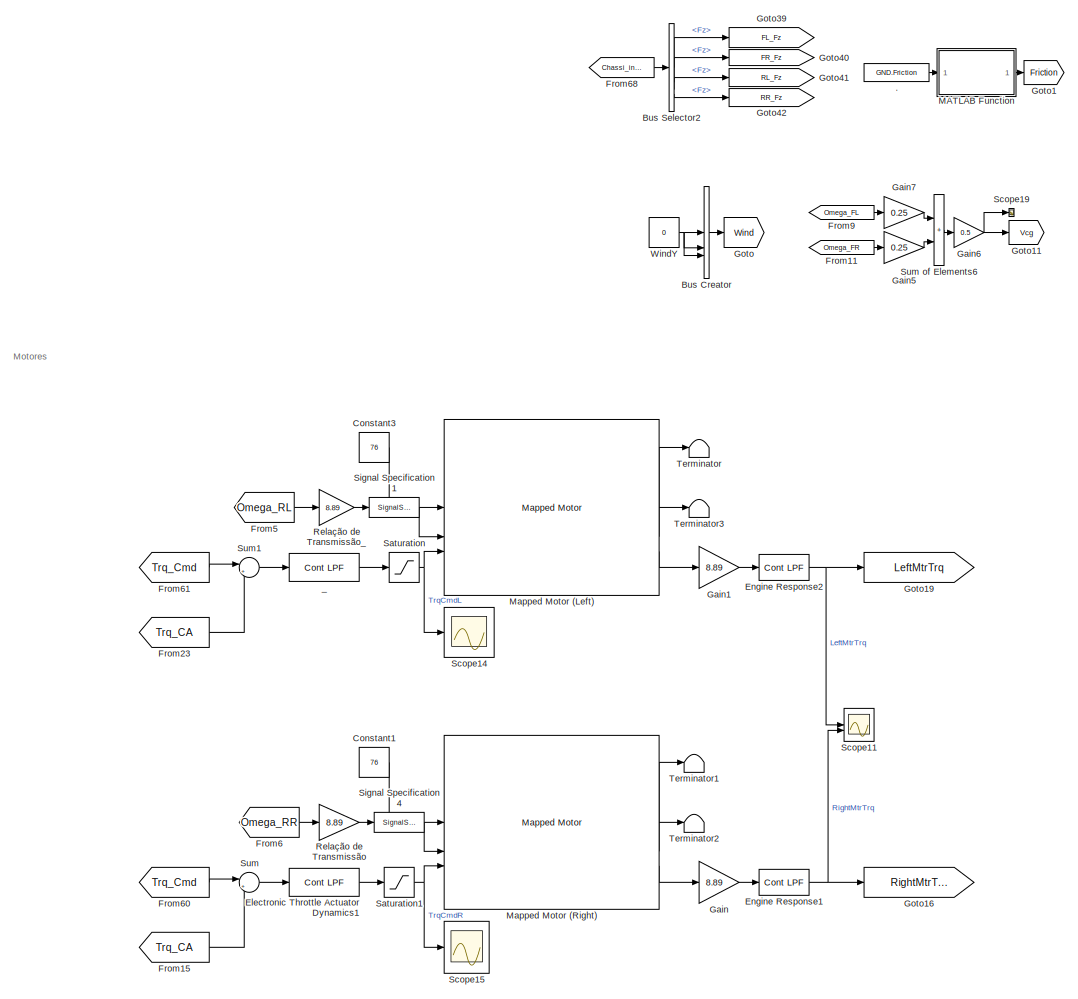
[diagram: root canvas - part 1/6, middle right region]
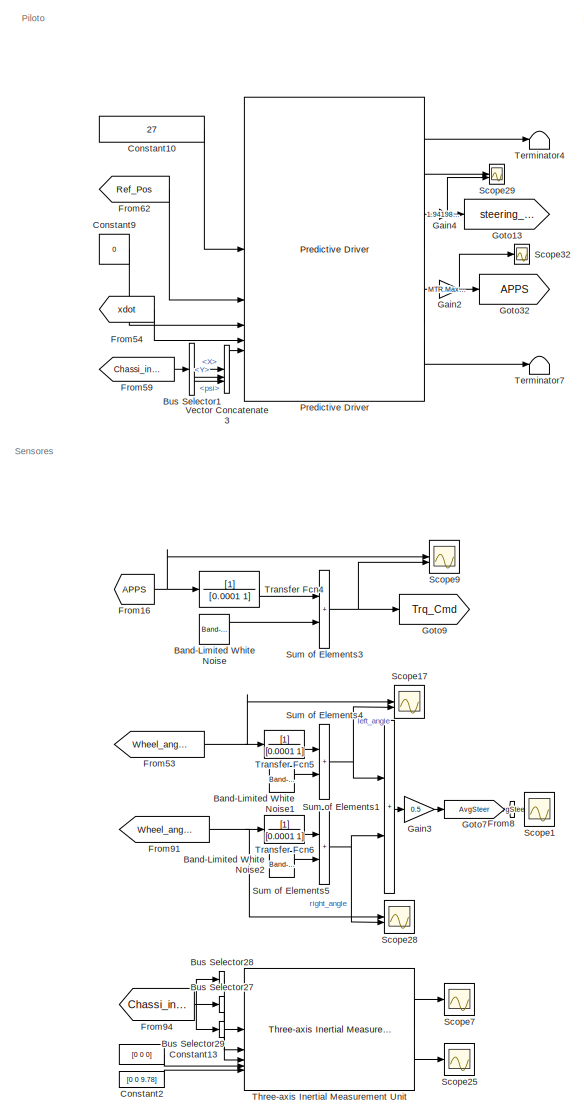
[diagram: root canvas - part 2/6, center side, full height]
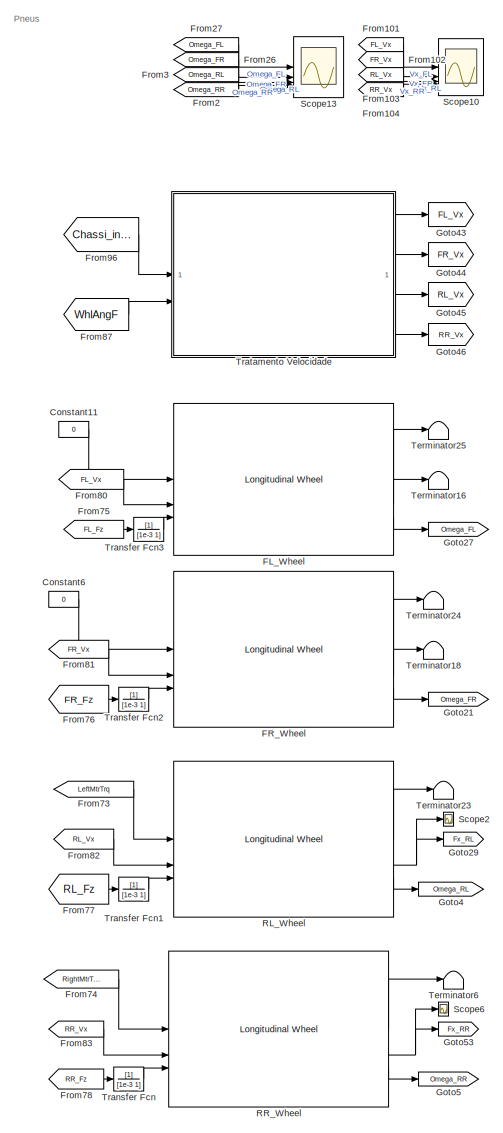
[diagram: root canvas - part 3/6, right side, full height]
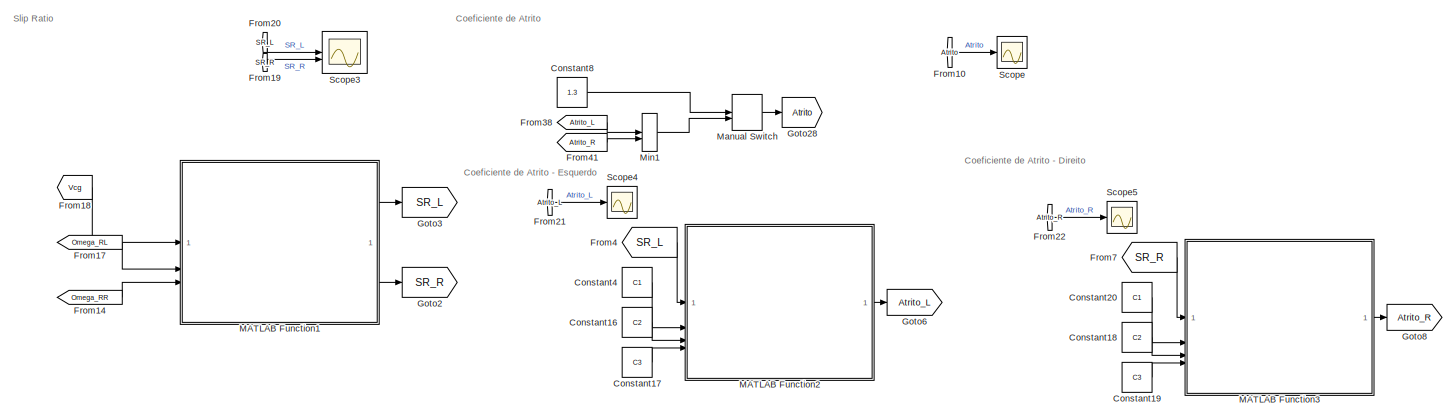
[diagram: root canvas - part 4/6, middle left region]
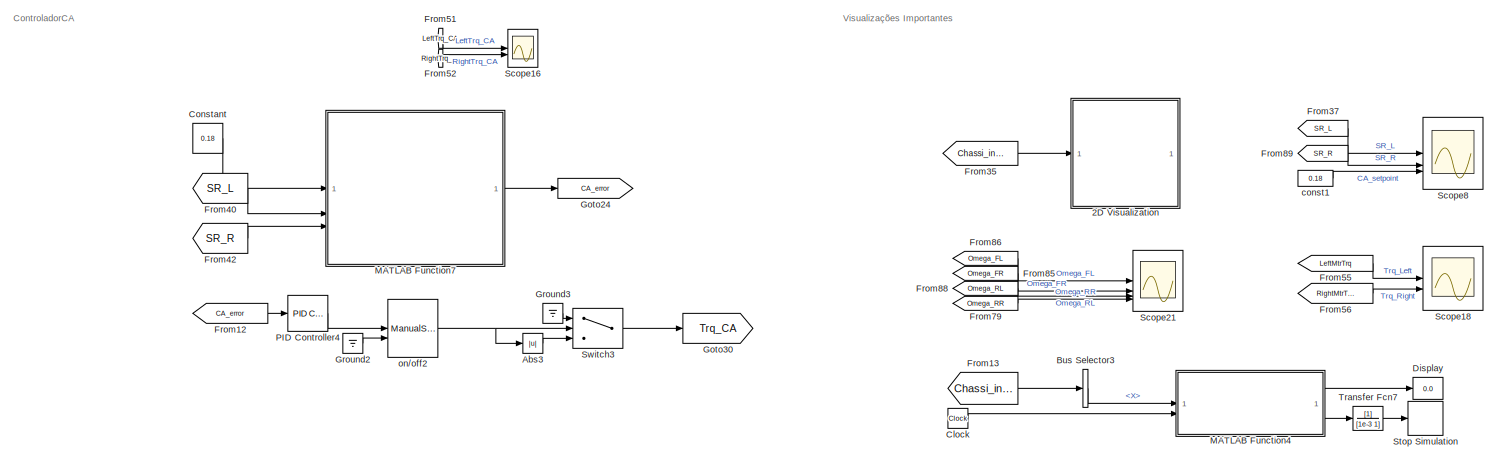
[diagram: root canvas - part 5/6, bottom left region]
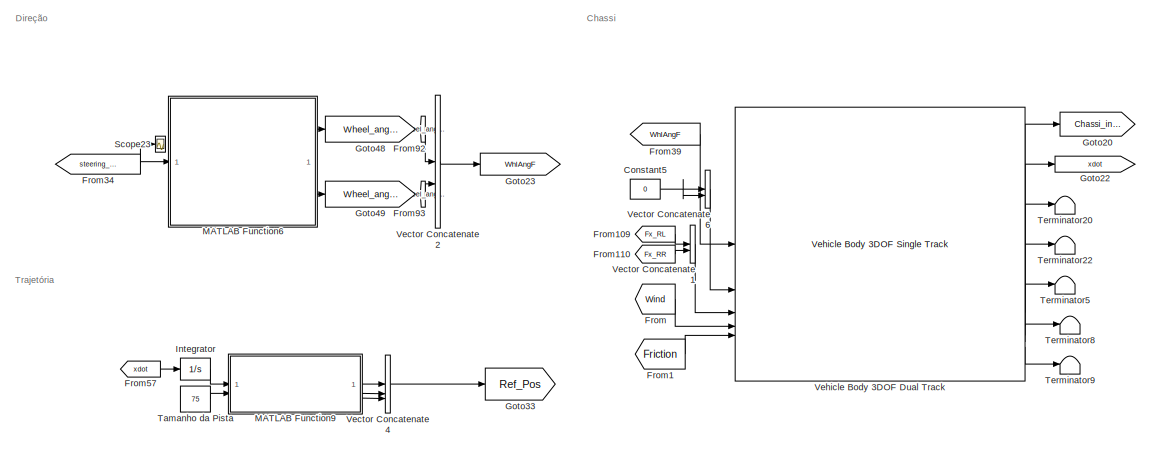
[diagram: root canvas - part 6/6, bottom right region]
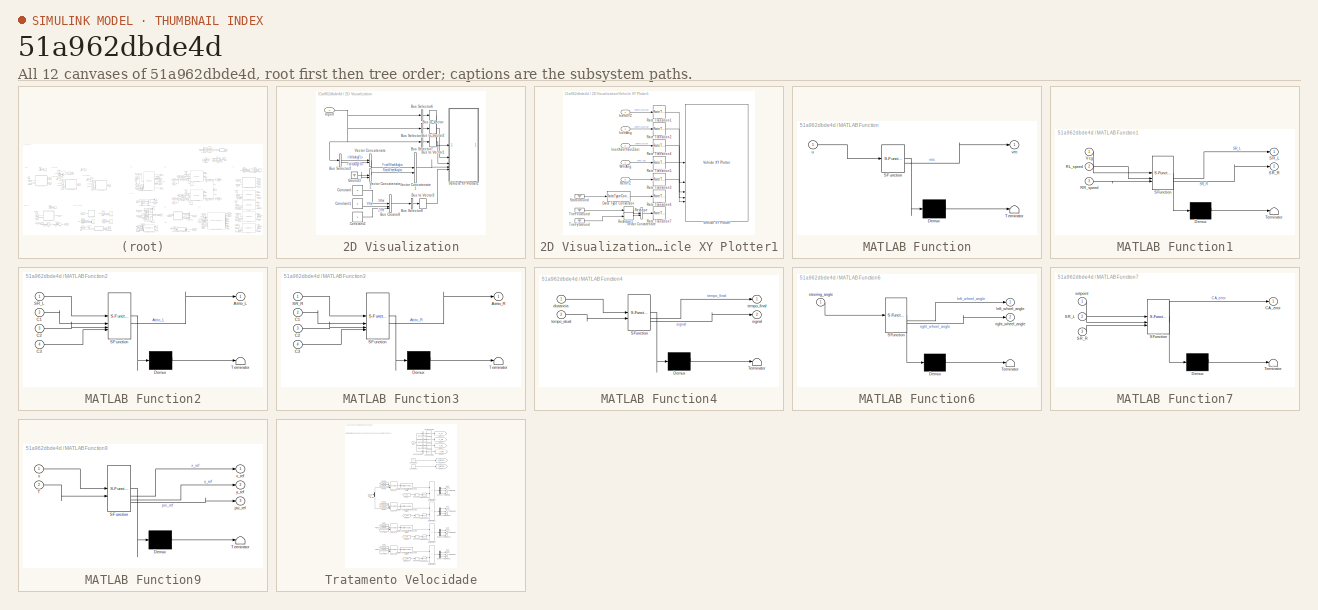
[diagram: thumbnail index - all 12 canvases of the model, root first then tree order]
MODEL slx_51a962dbde4d
KIND model
CONFIG AbsTol = auto
CONFIG EnableMultiTasking = off
CONFIG FixedStep = auto
CONFIG MaxStep = auto
CONFIG MinStep = auto
CONFIG RelTol = 1e-2
CONFIG SampleTimeConstraint = Unconstrained
CONFIG SolverName = VariableStepAuto
CONFIG StartTime = 0.0
CONFIG StopTime = 10
WORKSPACE source: mxarray member
WORKSPACE w = 0.5
BLOCK [Constant] .
  Value = GND.Friction
BLOCK [SubSystem] 2D Visualization
BLOCK [BusCreator] 2D Visualization/Bus Creator8
  DisplayOption = bar
  InheritFromInputs = on
  Inputs = 3
BLOCK [BusSelector] 2D Visualization/Bus Selector1
  OutputAsBus = on
  OutputSignals = InertFrm.Cg.Ang.phi,InertFrm.Cg.Ang.theta,InertFrm.Cg.Ang.psi
BLOCK [BusSelector] 2D Visualization/Bus Selector2
  OutputSignals = BdyFrm.FrntAxl.Steer.WhlAngFL,BdyFrm.FrntAxl.Steer.WhlAngFR
BLOCK [BusSelector] 2D Visualization/Bus Selector6
  OutputAsBus = on
  OutputSignals = InertFrm.Geom.Disp.X,InertFrm.Geom.Disp.Y,InertFrm.Geom.Disp.Z
BLOCK [BusSelector] 2D Visualization/Bus Selector7
  OutputAsBus = on
  OutputSignals = InertFrm.Geom.Vel.Xdot,InertFrm.Geom.Vel.Ydot,InertFrm.Geom.Vel.Zdot
BLOCK [BusSelector] 2D Visualization/Bus Selector8
  OutputAsBus = on
  OutputSignals = XRef,YRef,ZRef
BLOCK [BusToVector] 2D Visualization/Bus to Vector
BLOCK [BusToVector] 2D Visualization/Bus to Vector1
BLOCK [BusToVector] 2D Visualization/Bus to Vector2
BLOCK [BusToVector] 2D Visualization/Bus to Vector3
BLOCK [Constant] 2D Visualization/Constant
  Value = 0
BLOCK [Constant] 2D Visualization/Constant1
  Value = 0
BLOCK [Constant] 2D Visualization/Constant2
  Value = 0
BLOCK [Ground] 2D Visualization/Ground3
BLOCK [Inport] 2D Visualization/Inport
BLOCK [Concatenate] 2D Visualization/Vector Concatenate
BLOCK [Concatenate] 2D Visualization/Vector Concatenate1
BLOCK [Concatenate] 2D Visualization/Vector Concatenate2
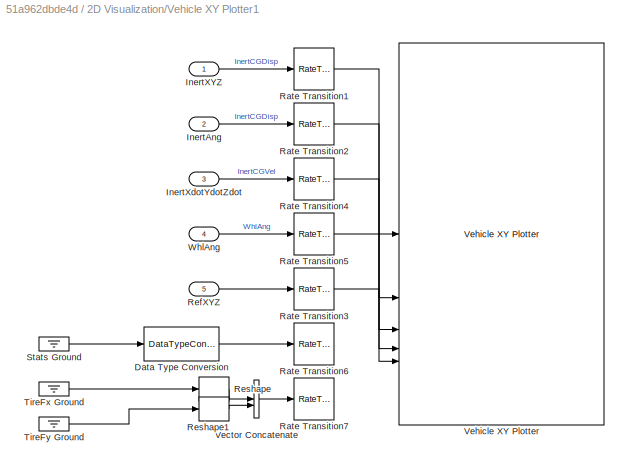
BLOCK [SubSystem] 2D Visualization/Vehicle XY Plotter1
BLOCK [DataTypeConversion] 2D Visualization/Vehicle XY Plotter1/Data Type Conversion
  OutDataTypeStr = double
  RndMeth = Floor
  SaturateOnIntegerOverflow = off
BLOCK [Inport] 2D Visualization/Vehicle XY Plotter1/InertAng
  Port = 2
BLOCK [Inport] 2D Visualization/Vehicle XY Plotter1/InertXYZ
BLOCK [Inport] 2D Visualization/Vehicle XY Plotter1/InertXdotYdotZdot
  Port = 3
BLOCK [RateTransition] 2D Visualization/Vehicle XY Plotter1/Rate Transition1
  Deterministic = off
  OutPortSampleTime = pltDT
BLOCK [RateTransition] 2D Visualization/Vehicle XY Plotter1/Rate Transition2
  Deterministic = off
  OutPortSampleTime = pltDT
BLOCK [RateTransition] 2D Visualization/Vehicle XY Plotter1/Rate Transition3
  Deterministic = off
  OutPortSampleTime = pltDT
BLOCK [RateTransition] 2D Visualization/Vehicle XY Plotter1/Rate Transition4
  Deterministic = off
  OutPortSampleTime = pltDT
BLOCK [RateTransition] 2D Visualization/Vehicle XY Plotter1/Rate Transition5
  Deterministic = off
  OutPortSampleTime = pltDT
BLOCK [RateTransition] 2D Visualization/Vehicle XY Plotter1/Rate Transition6
  Deterministic = off
  OutPortSampleTime = pltDT
BLOCK [RateTransition] 2D Visualization/Vehicle XY Plotter1/Rate Transition7
  Deterministic = off
  OutPortSampleTime = pltDT
BLOCK [Inport] 2D Visualization/Vehicle XY Plotter1/RefXYZ
  Port = 5
BLOCK [Reshape] 2D Visualization/Vehicle XY Plotter1/Reshape
  OutputDimensionality = Row vector (2-D)
BLOCK [Reshape] 2D Visualization/Vehicle XY Plotter1/Reshape1
  OutputDimensionality = Row vector (2-D)
BLOCK [Ground] 2D Visualization/Vehicle XY Plotter1/Stats Ground
BLOCK [Ground] 2D Visualization/Vehicle XY Plotter1/TireFx Ground
BLOCK [Ground] 2D Visualization/Vehicle XY Plotter1/TireFy Ground
BLOCK [Concatenate] 2D Visualization/Vehicle XY Plotter1/Vector Concatenate
  Mode = Multidimensional array
BLOCK [Reference] 2D Visualization/Vehicle XY Plotter1/Vehicle XY Plotter  REF=vehdynlibviscommon/Vehicle XY Plotter
  SourceBlock = vehdynlibviscommon/Vehicle XY Plotter
  SourceType = Vehicle XY Plotter
BLOCK [Inport] 2D Visualization/Vehicle XY Plotter1/WhlAng
  Port = 4
BLOCK [Abs] Abs3
  SaturateOnIntegerOverflow = off
BLOCK [Reference] Band-Limited White Noise  REF=simulink/Sources/Band-Limited
White Noise
  SourceBlock = simulink/Sources/Band-Limited\nWhite Noise
  SourceType = Band-Limited White Noise.
BLOCK [Reference] Band-Limited White Noise1  REF=simulink/Sources/Band-Limited
White Noise
  SourceBlock = simulink/Sources/Band-Limited\nWhite Noise
  SourceType = Band-Limited White Noise.
BLOCK [Reference] Band-Limited White Noise2  REF=simulink/Sources/Band-Limited
White Noise
  SourceBlock = simulink/Sources/Band-Limited\nWhite Noise
  SourceType = Band-Limited White Noise.
BLOCK [BusCreator] Bus Creator
  DisplayOption = bar
  InheritFromInputs = on
  Inputs = 3
BLOCK [BusSelector] Bus Selector1
  OutputSignals = InertFrm.Cg.Disp.X,InertFrm.Cg.Disp.Y,InertFrm.Cg.Ang.psi
BLOCK [BusSelector] Bus Selector2
  OutputSignals = BdyFrm.Forces.Tires.FrntTires.Lft.Fz,BdyFrm.Forces.Tires.FrntTires.Rght.Fz,BdyFrm.Forces.Tires.RearTires.Lft.Fz,BdyFrm.Forces.Tires.RearTires.Rght.Fz
BLOCK [BusSelector] Bus Selector27
  OutputAsBus = on
  OutputSignals = BdyFrm.Cg.AngVel
BLOCK [BusSelector] Bus Selector28
  OutputAsBus = on
  OutputSignals = BdyFrm.Cg.Acc.ax,BdyFrm.Cg.Acc.ay,BdyFrm.Cg.Acc.az
BLOCK [BusSelector] Bus Selector29
  OutputAsBus = on
  OutputSignals = BdyFrm.Cg.Acc.xddot,BdyFrm.Cg.Acc.yddot,BdyFrm.Cg.Acc.zddot
BLOCK [BusSelector] Bus Selector3
  OutputSignals = InertFrm.Cg.Disp.X
BLOCK [Clock] Clock
BLOCK [Constant] Constant
  Value = 0.18
BLOCK [Constant] Constant1
  Value = 76
BLOCK [Constant] Constant10
  Value = 27
BLOCK [Constant] Constant11
  Value = 0
BLOCK [Constant] Constant13
  Value = [0 0 0]
BLOCK [Constant] Constant16
  Value = C2
BLOCK [Constant] Constant17
  Value = C3
BLOCK [Constant] Constant18
  Value = C2
BLOCK [Constant] Constant19
  Value = C3
BLOCK [Constant] Constant2
  Value = [0 0 9.78]
BLOCK [Constant] Constant20
  Value = C1
BLOCK [Constant] Constant3
  Value = 76
BLOCK [Constant] Constant4
  Value = C1
BLOCK [Constant] Constant5
  Value = 0
BLOCK [Constant] Constant6
  Value = 0
BLOCK [Constant] Constant8
  Value = 1.3
BLOCK [Constant] Constant9
  Value = 0
BLOCK [Display] Display
  Decimation = 2
BLOCK [Reference] Electronic Throttle Actuator Dynamics1  REF=autolibutils/Cont LPF
  SourceBlock = autolibutils/Cont LPF
BLOCK [Reference] Engine Response1  REF=autolibutils/Cont LPF
  SourceBlock = autolibutils/Cont LPF
BLOCK [Reference] Engine Response2  REF=autolibutils/Cont LPF
  NameLocation = top
  SourceBlock = autolibutils/Cont LPF
BLOCK [Reference] FL_Wheel  REF=autolibshared/Longitudinal Wheel
  LibrarySourceBlock = vehdynlibtire/Longitudinal Wheel - Disc Brake
  SourceBlock = autolibshared/Longitudinal Wheel
  SourceType = Longitudinal Wheel
BLOCK [Reference] FR_Wheel  REF=autolibshared/Longitudinal Wheel
  LibrarySourceBlock = vehdynlibtire/Longitudinal Wheel - Disc Brake
  SourceBlock = autolibshared/Longitudinal Wheel
  SourceType = Longitudinal Wheel
BLOCK [From] From
  GotoTag = Wind
BLOCK [From] From1
  GotoTag = Friction
BLOCK [From] From10
  GotoTag = Atrito
BLOCK [From] From101
  GotoTag = FL_Vx
BLOCK [From] From102
  GotoTag = FR_Vx
BLOCK [From] From103
  GotoTag = RL_Vx
BLOCK [From] From104
  GotoTag = RR_Vx
BLOCK [From] From109
  GotoTag = Fx_RL
BLOCK [From] From11
  GotoTag = Omega_FR
BLOCK [From] From110
  GotoTag = Fx_RR
BLOCK [From] From12
  GotoTag = CA_error
BLOCK [From] From13
  GotoTag = Chassi_info
BLOCK [From] From14
  GotoTag = Omega_RR
BLOCK [From] From15
  GotoTag = Trq_CA
BLOCK [From] From16
  GotoTag = APPS
BLOCK [From] From17
  GotoTag = Omega_RL
BLOCK [From] From18
  GotoTag = Vcg
BLOCK [From] From19
  GotoTag = SR_R
BLOCK [From] From2
  GotoTag = Omega_RR
BLOCK [From] From20
  GotoTag = SR_L
BLOCK [From] From21
  GotoTag = Atrito_L
BLOCK [From] From22
  GotoTag = Atrito_R
BLOCK [From] From23
  GotoTag = Trq_CA
BLOCK [From] From26
  GotoTag = Omega_FR
BLOCK [From] From27
  GotoTag = Omega_FL
BLOCK [From] From3
  GotoTag = Omega_RL
BLOCK [From] From34
  GotoTag = steering_angle
BLOCK [From] From35
  GotoTag = Chassi_info
BLOCK [From] From37
  GotoTag = SR_L
BLOCK [From] From38
  GotoTag = Atrito_L
BLOCK [From] From39
  GotoTag = WhlAngF
BLOCK [From] From4
  GotoTag = SR_L
BLOCK [From] From40
  GotoTag = SR_L
BLOCK [From] From41
  GotoTag = Atrito_R
BLOCK [From] From42
  GotoTag = SR_R
BLOCK [From] From5
  GotoTag = Omega_RL
BLOCK [From] From51
  GotoTag = LeftTrq_CA
BLOCK [From] From52
  GotoTag = RightTrq_CA
BLOCK [From] From53
  GotoTag = Wheel_angle_L
BLOCK [From] From54
  GotoTag = xdot
BLOCK [From] From55
  GotoTag = LeftMtrTrq
BLOCK [From] From56
  GotoTag = RightMtrTrq
BLOCK [From] From57
  GotoTag = xdot
BLOCK [From] From59
  GotoTag = Chassi_info
BLOCK [From] From6
  GotoTag = Omega_RR
BLOCK [From] From60
  GotoTag = Trq_Cmd
BLOCK [From] From61
  GotoTag = Trq_Cmd
BLOCK [From] From62
  GotoTag = Ref_Pos
BLOCK [From] From68
  GotoTag = Chassi_info
BLOCK [From] From7
  GotoTag = SR_R
BLOCK [From] From73
  GotoTag = LeftMtrTrq
BLOCK [From] From74
  GotoTag = RightMtrTrq
BLOCK [From] From75
  GotoTag = FL_Fz
BLOCK [From] From76
  GotoTag = FR_Fz
BLOCK [From] From77
  GotoTag = RL_Fz
BLOCK [From] From78
  GotoTag = RR_Fz
BLOCK [From] From79
  GotoTag = Omega_RR
BLOCK [From] From8
  GotoTag = AvgSteer
BLOCK [From] From80
  GotoTag = FL_Vx
BLOCK [From] From81
  GotoTag = FR_Vx
BLOCK [From] From82
  GotoTag = RL_Vx
BLOCK [From] From83
  GotoTag = RR_Vx
BLOCK [From] From85
  GotoTag = Omega_FR
BLOCK [From] From86
  GotoTag = Omega_FL
BLOCK [From] From87
  GotoTag = WhlAngF
BLOCK [From] From88
  GotoTag = Omega_RL
BLOCK [From] From89
  GotoTag = SR_R
BLOCK [From] From9
  GotoTag = Omega_FL
BLOCK [From] From91
  GotoTag = Wheel_angle_R
BLOCK [From] From92
  GotoTag = Wheel_angle_L
BLOCK [From] From93
  GotoTag = Wheel_angle_R
BLOCK [From] From94
  GotoTag = Chassi_info
BLOCK [From] From96
  GotoTag = Chassi_info
BLOCK [Gain] Gain
  Gain = 8.89
BLOCK [Gain] Gain1
  Gain = 8.89
BLOCK [Gain] Gain2
  Gain = MTR.MaxTorque
BLOCK [Gain] Gain3
  Gain = 0.5
BLOCK [Gain] Gain4
  Gain = 1.941983885
BLOCK [Gain] Gain5
  Gain = 0.25
BLOCK [Gain] Gain6
  Gain = 0.5
BLOCK [Gain] Gain7
  Gain = 0.25
BLOCK [Goto] Goto
  GotoTag = Wind
BLOCK [Goto] Goto1
  GotoTag = Friction
BLOCK [Goto] Goto11
  GotoTag = Vcg
BLOCK [Goto] Goto13
  GotoTag = steering_angle
BLOCK [Goto] Goto16
  GotoTag = RightMtrTrq
BLOCK [Goto] Goto19
  GotoTag = LeftMtrTrq
BLOCK [Goto] Goto2
  GotoTag = SR_R
BLOCK [Goto] Goto20
  GotoTag = Chassi_info
BLOCK [Goto] Goto21
  GotoTag = Omega_FR
BLOCK [Goto] Goto22
  GotoTag = xdot
BLOCK [Goto] Goto23
  GotoTag = WhlAngF
BLOCK [Goto] Goto24
  GotoTag = CA_error
BLOCK [Goto] Goto27
  GotoTag = Omega_FL
BLOCK [Goto] Goto28
  GotoTag = Atrito
BLOCK [Goto] Goto29
  GotoTag = Fx_RL
BLOCK [Goto] Goto3
  GotoTag = SR_L
BLOCK [Goto] Goto30
  GotoTag = Trq_CA
BLOCK [Goto] Goto32
  GotoTag = APPS
BLOCK [Goto] Goto33
  GotoTag = Ref_Pos
BLOCK [Goto] Goto39
  GotoTag = FL_Fz
BLOCK [Goto] Goto4
  GotoTag = Omega_RL
BLOCK [Goto] Goto40
  GotoTag = FR_Fz
BLOCK [Goto] Goto41
  GotoTag = RL_Fz
BLOCK [Goto] Goto42
  GotoTag = RR_Fz
BLOCK [Goto] Goto43
  GotoTag = FL_Vx
BLOCK [Goto] Goto44
  GotoTag = FR_Vx
BLOCK [Goto] Goto45
  GotoTag = RL_Vx
BLOCK [Goto] Goto46
  GotoTag = RR_Vx
BLOCK [Goto] Goto48
  GotoTag = Wheel_angle_L
BLOCK [Goto] Goto49
  GotoTag = Wheel_angle_R
BLOCK [Goto] Goto5
  GotoTag = Omega_RR
BLOCK [Goto] Goto53
  GotoTag = Fx_RR
BLOCK [Goto] Goto6
  GotoTag = Atrito_L
BLOCK [Goto] Goto7
  GotoTag = AvgSteer
BLOCK [Goto] Goto8
  GotoTag = Atrito_R
BLOCK [Goto] Goto9
  GotoTag = Trq_Cmd
BLOCK [Ground] Ground2
BLOCK [Ground] Ground3
BLOCK [Integrator] Integrator
BLOCK [SubSystem] MATLAB Function
  ErrorFcn = Stateflow.Translate.translate
  PermitHierarchicalResolution = ExplicitOnly
  SFBlockType = MATLAB Function
  TreatAsAtomicUnit = on
BLOCK [Demux] MATLAB Function/ Demux 
  Outputs = 1
BLOCK [S-Function] MATLAB Function/ SFunction 
  EnableBusSupport = off
  FunctionName = sf_sfun
  PortCounts = [1 2]
  SFcnIsStateOwnerBlock = off
  SFunctionDeploymentMode = off
  Tag = Stateflow S-Function 2
BLOCK [Terminator] MATLAB Function/ Terminator 
BLOCK [Inport] MATLAB Function/u
BLOCK [Outport] MATLAB Function/vec
BLOCK [SubSystem] MATLAB Function1
  ErrorFcn = Stateflow.Translate.translate
  PermitHierarchicalResolution = ExplicitOnly
  SFBlockType = MATLAB Function
  TreatAsAtomicUnit = on
BLOCK [Demux] MATLAB Function1/ Demux 
  Outputs = 1
BLOCK [S-Function] MATLAB Function1/ SFunction 
  EnableBusSupport = off
  FunctionName = sf_sfun
  PortCounts = [3 3]
  SFcnIsStateOwnerBlock = off
  SFunctionDeploymentMode = off
  Tag = Stateflow S-Function 1
BLOCK [Terminator] MATLAB Function1/ Terminator 
BLOCK [Inport] MATLAB Function1/RL_speed
  Port = 2
BLOCK [Inport] MATLAB Function1/RR_speed
  Port = 3
BLOCK [Outport] MATLAB Function1/SR_L
BLOCK [Outport] MATLAB Function1/SR_R
  Port = 2
BLOCK [Inport] MATLAB Function1/Vcg
BLOCK [SubSystem] MATLAB Function2
  ErrorFcn = Stateflow.Translate.translate
  PermitHierarchicalResolution = ExplicitOnly
  SFBlockType = MATLAB Function
  TreatAsAtomicUnit = on
BLOCK [Demux] MATLAB Function2/ Demux 
  Outputs = 1
BLOCK [S-Function] MATLAB Function2/ SFunction 
  EnableBusSupport = off
  FunctionName = sf_sfun
  PortCounts = [4 2]
  SFcnIsStateOwnerBlock = off
  SFunctionDeploymentMode = off
  Tag = Stateflow S-Function 3
BLOCK [Terminator] MATLAB Function2/ Terminator 
BLOCK [Outport] MATLAB Function2/Atrito_L
BLOCK [Inport] MATLAB Function2/C1
  Port = 2
BLOCK [Inport] MATLAB Function2/C2
  Port = 3
BLOCK [Inport] MATLAB Function2/C3
  Port = 4
BLOCK [Inport] MATLAB Function2/SR_L
BLOCK [SubSystem] MATLAB Function3
  ErrorFcn = Stateflow.Translate.translate
  PermitHierarchicalResolution = ExplicitOnly
  SFBlockType = MATLAB Function
  TreatAsAtomicUnit = on
BLOCK [Demux] MATLAB Function3/ Demux 
  Outputs = 1
BLOCK [S-Function] MATLAB Function3/ SFunction 
  EnableBusSupport = off
  FunctionName = sf_sfun
  PortCounts = [4 2]
  SFcnIsStateOwnerBlock = off
  SFunctionDeploymentMode = off
  Tag = Stateflow S-Function 4
BLOCK [Terminator] MATLAB Function3/ Terminator 
BLOCK [Outport] MATLAB Function3/Atrito_R
BLOCK [Inport] MATLAB Function3/C1
  Port = 2
BLOCK [Inport] MATLAB Function3/C2
  Port = 3
BLOCK [Inport] MATLAB Function3/C3
  Port = 4
BLOCK [Inport] MATLAB Function3/SR_R
BLOCK [SubSystem] MATLAB Function4
  ErrorFcn = Stateflow.Translate.translate
  PermitHierarchicalResolution = ExplicitOnly
  SFBlockType = MATLAB Function
  TreatAsAtomicUnit = on
BLOCK [Demux] MATLAB Function4/ Demux 
  Outputs = 1
BLOCK [S-Function] MATLAB Function4/ SFunction 
  EnableBusSupport = off
  FunctionName = sf_sfun
  PortCounts = [2 3]
  SFcnIsStateOwnerBlock = off
  SFunctionDeploymentMode = off
  Tag = Stateflow S-Function 5
BLOCK [Terminator] MATLAB Function4/ Terminator 
BLOCK [Inport] MATLAB Function4/distancia
BLOCK [Outport] MATLAB Function4/signal
  Port = 2
BLOCK [Inport] MATLAB Function4/tempo_atual
  Port = 2
BLOCK [Outport] MATLAB Function4/tempo_final
BLOCK [SubSystem] MATLAB Function6
  ErrorFcn = Stateflow.Translate.translate
  PermitHierarchicalResolution = ExplicitOnly
  SFBlockType = MATLAB Function
  TreatAsAtomicUnit = on
BLOCK [Demux] MATLAB Function6/ Demux 
  Outputs = 1
BLOCK [S-Function] MATLAB Function6/ SFunction 
  EnableBusSupport = off
  FunctionName = sf_sfun
  PortCounts = [1 3]
  SFcnIsStateOwnerBlock = off
  SFunctionDeploymentMode = off
  Tag = Stateflow S-Function 7
BLOCK [Terminator] MATLAB Function6/ Terminator 
BLOCK [Outport] MATLAB Function6/left_wheel_angle
BLOCK [Outport] MATLAB Function6/right_wheel_angle
  Port = 2
BLOCK [Inport] MATLAB Function6/steering_angle
BLOCK [SubSystem] MATLAB Function7
  ErrorFcn = Stateflow.Translate.translate
  PermitHierarchicalResolution = ExplicitOnly
  SFBlockType = MATLAB Function
  TreatAsAtomicUnit = on
BLOCK [Demux] MATLAB Function7/ Demux 
  Outputs = 1
BLOCK [S-Function] MATLAB Function7/ SFunction 
  EnableBusSupport = off
  FunctionName = sf_sfun
  PortCounts = [3 2]
  SFcnIsStateOwnerBlock = off
  SFunctionDeploymentMode = off
  Tag = Stateflow S-Function 8
BLOCK [Terminator] MATLAB Function7/ Terminator 
BLOCK [Outport] MATLAB Function7/CA_error
BLOCK [Inport] MATLAB Function7/SR_L
  Port = 2
BLOCK [Inport] MATLAB Function7/SR_R
  Port = 3
BLOCK [Inport] MATLAB Function7/setpoint
BLOCK [SubSystem] MATLAB Function9
  ErrorFcn = Stateflow.Translate.translate
  PermitHierarchicalResolution = ExplicitOnly
  SFBlockType = MATLAB Function
  TreatAsAtomicUnit = on
BLOCK [Demux] MATLAB Function9/ Demux 
  Outputs = 1
BLOCK [S-Function] MATLAB Function9/ SFunction 
  EnableBusSupport = off
  FunctionName = sf_sfun
  PortCounts = [2 4]
  SFcnIsStateOwnerBlock = off
  SFunctionDeploymentMode = off
  Tag = Stateflow S-Function 10
BLOCK [Terminator] MATLAB Function9/ Terminator 
BLOCK [Inport] MATLAB Function9/T
  Port = 2
BLOCK [Outport] MATLAB Function9/psi_ref
  Port = 3
BLOCK [Inport] MATLAB Function9/s
BLOCK [Outport] MATLAB Function9/x_ref
BLOCK [Outport] MATLAB Function9/y_ref
  Port = 2
BLOCK [ManualSwitch] Manual Switch
  CurrentSetting = 0
BLOCK [Reference] Mapped Motor (Left)  REF=autolibmappedmotor/Mapped Motor
  LibrarySourceBlock = autolibemachines/Mapped Motor
  SourceBlock = autolibmappedmotor/Mapped Motor
  SourceType = MappedMotor
BLOCK [Reference] Mapped Motor (Right)  REF=autolibmappedmotor/Mapped Motor
  LibrarySourceBlock = autolibemachines/Mapped Motor
  SourceBlock = autolibmappedmotor/Mapped Motor
  SourceType = MappedMotor
BLOCK [MinMax] Min1
  Inputs = 2
BLOCK [Reference] PID Controller4  REF=slpidlib/PID Controller
  SourceBlock = slpidlib/PID Controller
  SourceType = PID 1dof
BLOCK [Reference] Predictive Driver  REF=vehdynlibdriver/Predictive Driver
  SourceBlock = vehdynlibdriver/Predictive Driver
  SourceType = Predictive Driver
BLOCK [Reference] RL_Wheel  REF=autolibshared/Longitudinal Wheel
  LibrarySourceBlock = vehdynlibtire/Longitudinal Wheel - Disc Brake
  SourceBlock = autolibshared/Longitudinal Wheel
  SourceType = Longitudinal Wheel
BLOCK [Reference] RR_Wheel  REF=autolibshared/Longitudinal Wheel
  LibrarySourceBlock = vehdynlibtire/Longitudinal Wheel - Disc Brake
  SourceBlock = autolibshared/Longitudinal Wheel
  SourceType = Longitudinal Wheel
BLOCK [Gain] Relação de Transmissão
  Gain = 8.89
BLOCK [Gain] Relação de Transmissão_
  Gain = 8.89
BLOCK [Saturate] Saturation
  LowerLimit = 0
  UpperLimit = 45.85
BLOCK [Saturate] Saturation1
  LowerLimit = 0
  UpperLimit = 45.85
BLOCK [Scope] Scope
  ActiveDisplayYMaximum = 3.4614672364545287
  ActiveDisplayYMinimum = -19.471110993414115
  Floating = off
  GraphicalSettings = {"AxesScalingProperties":{"AlignXAxis":"Center","AlignYAxis":"Center","AutoScaleXAxisLimits":false,"AxesScaling":"Manual","AxesScalingNumUpdates":10,"ExpandOnly":true,"ScaleAxesLimitsAtStop":false,"XAxisDataRange":100,"YAxisDataRange":80},"DisplayProperties":{"ColorOrder":["auto","auto","auto","auto","auto","auto","auto","auto","auto","auto","auto","auto","auto","auto","auto","auto","auto","auto",...<+2008ch>
  MultipleDisplayCache = [{"MaxYLimMag":19.471110993414115,"MaxYLimReal":3.4614672364545287,"MinYLimMag":0,"MinYLimReal":-19.471110993414115,"PlotAsMagnitudePhase":false,"ShowGrid":true,"ShowLegend":true,"Title":"%<SignalLabel>","YLabel":""}]
  NumInputPorts = 1
  ScopeFrameLocation = window
  ShowLegend = on
  WasSavedAsWebScope = on
  WindowPosition = [680.000000,330.000000,560.000000,420.000000,]
BLOCK [Scope] Scope1
  ActiveDisplayYMaximum = 0.001241780452163801
  ActiveDisplayYMinimum = -0.0014047048791021959
  DataLoggingVariableName = ScopeData1
  Floating = off
  GraphicalSettings = {"Style":{"BackgroundColor":[0.12941176470588237,0.12941176470588237,0.12941176470588237],"AxesColor":[0.07058823529411765,0.07058823529411765,0.07058823529411765],"LabelsColor":[0.8509803921568627,0.8509803921568627,0.8509803921568627],"PreserveColors":false,"Visible":[true],"LineStyle":["-"],"LineWidth":[1.5],"BarWidth":[0.9],"LineColor":["auto"],"LineFaceAlpha":[1],"LineEdgeAlpha":[1],"Marker":...<+2003ch>
  MultipleDisplayCache = [{"MaxYLimMag":0.0014047048791021959,"MaxYLimReal":0.001241780452163801,"MinYLimMag":0,"MinYLimReal":-0.0014047048791021959,"PlotAsMagnitudePhase":false,"ShowGrid":true,"ShowLegend":false,"Title":"%<SignalLabel>","YLabel":""}]
  NumInputPorts = 1
  ScopeFrameLocation = window
  WasSavedAsWebScope = on
  WindowPosition = [680.000000,330.000000,560.000000,420.000000,]
BLOCK [Scope] Scope10
  ActiveDisplayYMaximum = 29.246858732216907
  ActiveDisplayYMinimum = -3.2496509702463223
  ContainerLayout = {"WindowBounds":[226,91,667,694],"gridDimensions":{"w":1,"h":1},"tileCount":1,"tileCoverage":1,"columnWeights":1,"rowWeights":1,"tileOccupancy":{"children":[{"id":"/Scope8"},{"id":"/Scope18"},{"id":"/Scope19"},{"id":"/Scope32"},{"id":"/Scope10"}]}}  <repeated x5 — deduplicated; at blocks: Scope10, Scope18, Scope19, Scope32, Scope8>
  DataLoggingVariableName = ScopeData10
  Floating = off
  GraphicalSettings = {"Style":{"BackgroundColor":[0.12941176470588237,0.12941176470588237,0.12941176470588237],"AxesColor":[0.07058823529411765,0.07058823529411765,0.07058823529411765],"LabelsColor":[0.8509803921568627,0.8509803921568627,0.8509803921568627],"PreserveColors":false,"Visible":[true,true,false,false],"LineStyle":["-","-","-","-"],"LineWidth":[1.5,1.5,1.5,1.5],"BarWidth":[0.9,0.9,0.9,0.9],"LineColor":["aut...<+2328ch>
  MultipleDisplayCache = [{"MaxYLimMag":29.246858732216907,"MaxYLimReal":29.246858732216907,"MinYLimMag":0,"MinYLimReal":-3.2496509702463223,"PlotAsMagnitudePhase":false,"ShowGrid":true,"ShowLegend":true,"Title":"%<SignalLabel>","YLabel":""}]
  NumInputPorts = 4
  ScopeFrameLocation = container
  ShowLegend = on
  Visible = on
  WasSavedAsWebScope = on
  WindowPosition = [235.000000,304.000000,651.000000,655.000000,]
BLOCK [Scope] Scope11
  ActiveDisplayYMaximum = 454.0950059463305
  ActiveDisplayYMinimum = -50.455000660703377
  DataLoggingVariableName = ScopeData11
  Floating = off
  GraphicalSettings = {"Style":{"BackgroundColor":[1,1,1],"AxesColor":[1,1,1],"LabelsColor":[0,0,0],"PreserveColors":false,"Visible":[true,true],"LineStyle":["-","-"],"LineWidth":[3,3],"BarWidth":[0.9,0.9],"LineColor":["auto",[0,0,1]],"LineFaceAlpha":[1,1],"LineEdgeAlpha":[1,1],"Marker":["none","none"],"FontSize":8.5,"LineTrueColor":[[0.9294117647058824,0.6941176470588235,0.12549019607843137],[0,0,1]],"ChannelNames":""...<+1927ch>
  MultipleDisplayCache = [{"MaxYLimMag":454.0950059463305,"MaxYLimReal":454.0950059463305,"MinYLimMag":0,"MinYLimReal":-50.455000660703377,"PlotAsMagnitudePhase":false,"ShowGrid":true,"ShowLegend":true,"Title":"%<SignalLabel>","YLabel":""}]
  NumInputPorts = 2
  ScopeFrameLocation = window
  ShowLegend = on
  WasSavedAsWebScope = on
  WindowPosition = [1.000000,49.000000,1920.000000,1009.000000,]
BLOCK [Scope] Scope13
  ActiveDisplayYMaximum = 119.28334475316522
  ActiveDisplayYMinimum = -13.25370497257391
  DataLoggingVariableName = ScopeData13
  Floating = off
  GraphicalSettings = {"Style":{"BackgroundColor":[0.12941176470588237,0.12941176470588237,0.12941176470588237],"AxesColor":[0.07058823529411765,0.07058823529411765,0.07058823529411765],"LabelsColor":[0.8509803921568627,0.8509803921568627,0.8509803921568627],"PreserveColors":false,"Visible":[true,true,true,true],"LineStyle":["-","-","-","-"],"LineWidth":[1.5,1.5,1.5,1.5],"BarWidth":[0.9,0.9,0.9,0.9],"LineColor":["auto"...<+2350ch>
  MultipleDisplayCache = [{"MaxYLimMag":119.28334475316522,"MaxYLimReal":119.28334475316522,"MinYLimMag":0,"MinYLimReal":-13.25370497257391,"PlotAsMagnitudePhase":false,"ShowGrid":true,"ShowLegend":true,"Title":"%<SignalLabel>","YLabel":""}]
  NumInputPorts = 4
  ScopeFrameLocation = window
  ShowLegend = on
  WasSavedAsWebScope = on
  WindowPosition = [817.000000,499.000000,560.000000,420.000000,]
BLOCK [Scope] Scope14
  ActiveDisplayYMaximum = 35.434847233915406
  ActiveDisplayYMinimum = -3.3565087023537092
  DataLoggingVariableName = ScopeData14
  Floating = off
  GraphicalSettings = {"AxesScalingProperties":{"AlignXAxis":"Center","AlignYAxis":"Center","AutoScaleXAxisLimits":false,"AxesScaling":"Manual","AxesScalingNumUpdates":10,"ExpandOnly":true,"ScaleAxesLimitsAtStop":false,"XAxisDataRange":100,"YAxisDataRange":80},"DisplayProperties":{"ColorOrder":["auto","auto","auto","auto","auto","auto","auto","auto","auto","auto","auto","auto","auto","auto","auto","auto","auto","auto",...<+1902ch>
  MultipleDisplayCache = [{"MaxYLimMag":51.581250000000004,"MaxYLimReal":35.434847233915406,"MinYLimMag":0,"MinYLimReal":-3.3565087023537092,"PlotAsMagnitudePhase":false,"ShowGrid":true,"ShowLegend":true,"Title":"%<SignalLabel>","YLabel":""}]
  NumInputPorts = 1
  ScopeFrameLocation = window
  ShowLegend = on
  WasSavedAsWebScope = on
  WindowPosition = [127.000000,577.000000,800.000000,404.000000,]
BLOCK [Scope] Scope15
  ActiveDisplayYMaximum = 51.581250000000004
  ActiveDisplayYMinimum = -5.7312499999999993
  DataLoggingVariableName = ScopeData15
  Floating = off
  GraphicalSettings = {"Style":{"BackgroundColor":[0.12941176470588237,0.12941176470588237,0.12941176470588237],"AxesColor":[0.07058823529411765,0.07058823529411765,0.07058823529411765],"LabelsColor":[0.8509803921568627,0.8509803921568627,0.8509803921568627],"PreserveColors":false,"Visible":[true],"LineStyle":["-"],"LineWidth":[1.5],"BarWidth":[0.9],"LineColor":["auto"],"LineFaceAlpha":[1],"LineEdgeAlpha":[1],"Marker":...<+1947ch>
  MultipleDisplayCache = [{"MaxYLimMag":51.581250000000004,"MaxYLimReal":51.581250000000004,"MinYLimMag":0,"MinYLimReal":-5.7312499999999993,"PlotAsMagnitudePhase":false,"ShowGrid":true,"ShowLegend":true,"Title":"%<SignalLabel>","YLabel":""}]
  NumInputPorts = 1
  ScopeFrameLocation = window
  ShowLegend = on
  WasSavedAsWebScope = on
  WindowPosition = [41.000000,61.000000,958.000000,484.000000,]
BLOCK [Scope] Scope16
  ActiveDisplayYMaximum = 188.6806476933761
  ActiveDisplayYMinimum = -20.964516410375118
  DataLoggingVariableName = ScopeData16
  Floating = off
  GraphicalSettings = {"Style":{"BackgroundColor":[0.12941176470588237,0.12941176470588237,0.12941176470588237],"AxesColor":[0.07058823529411765,0.07058823529411765,0.07058823529411765],"LabelsColor":[0.8509803921568627,0.8509803921568627,0.8509803921568627],"PreserveColors":false,"Visible":[true,true],"LineStyle":["-","-"],"LineWidth":[1.5,1.5],"BarWidth":[0.9,0.9],"LineColor":["auto","auto"],"LineFaceAlpha":[1,1],"Li...<+2126ch>
  MultipleDisplayCache = [{"MaxYLimMag":188.6806476933761,"MaxYLimReal":188.6806476933761,"MinYLimMag":0,"MinYLimReal":-20.964516410375118,"PlotAsMagnitudePhase":false,"ShowGrid":true,"ShowLegend":true,"Title":"%<SignalLabel>","YLabel":""}]
  NumInputPorts = 2
  ScopeFrameLocation = window
  ShowLegend = on
  WasSavedAsWebScope = on
  WindowPosition = [680.000000,330.000000,560.000000,420.000000,]
BLOCK [Scope] Scope17
  DataLoggingVariableName = ScopeData9
  Floating = off
  GraphicalSettings = {"GraphicalSettings":{"LegacySettings":true,"Style":{"Style":{"PlotType":"Auto"}}}}
  NumInputPorts = 2
  WasSavedAsWebScope = on
BLOCK [Scope] Scope18
  ActiveDisplayYMaximum = 454.0950059463305
  ActiveDisplayYMinimum = -50.455000660703377
  DataLoggingVariableName = ScopeData18
  Floating = off
  GraphicalSettings = {"Style":{"BackgroundColor":[0.12941176470588237,0.12941176470588237,0.12941176470588237],"AxesColor":[0.07058823529411765,0.07058823529411765,0.07058823529411765],"LabelsColor":[0.8509803921568627,0.8509803921568627,0.8509803921568627],"PreserveColors":false,"Visible":[true,true],"LineStyle":["-","-"],"LineWidth":[1.5,1.5],"BarWidth":[0.9,0.9],"LineColor":["auto","auto"],"LineFaceAlpha":[1,1],"Li...<+2112ch>
  MultipleDisplayCache = [{"MaxYLimMag":454.0950059463305,"MaxYLimReal":454.0950059463305,"MinYLimMag":0,"MinYLimReal":-50.455000660703377,"PlotAsMagnitudePhase":false,"ShowGrid":true,"ShowLegend":true,"Title":"%<SignalLabel>","YLabel":""}]
  NumInputPorts = 2
  ScopeFrameLocation = container
  ShowLegend = on
  Visible = on
  WasSavedAsWebScope = on
  WindowPosition = [235.000000,304.000000,651.000000,655.000000,]
BLOCK [Scope] Scope19
  ActiveDisplayYMaximum = 31.162885541509109
  ActiveDisplayYMinimum = -7.2953168052267152
  DataLoggingVariableName = ScopeData19
  Floating = off
  GraphicalSettings = {"Style":{"BackgroundColor":[0.12941176470588237,0.12941176470588237,0.12941176470588237],"AxesColor":[0.07058823529411765,0.07058823529411765,0.07058823529411765],"LabelsColor":[0.8509803921568627,0.8509803921568627,0.8509803921568627],"PreserveColors":false,"Visible":[true],"LineStyle":["-"],"LineWidth":[1.5],"BarWidth":[0.9],"LineColor":["auto"],"LineFaceAlpha":[1],"LineEdgeAlpha":[1],"Marker":...<+1991ch>
  MultipleDisplayCache = [{"MaxYLimMag":27.119707068605578,"MaxYLimReal":31.162885541509109,"MinYLimMag":0,"MinYLimReal":-7.2953168052267152,"PlotAsMagnitudePhase":false,"ShowGrid":true,"ShowLegend":false,"Title":"%<SignalLabel>","YLabel":""}]
  NumInputPorts = 1
  ScopeFrameLocation = container
  Visible = on
  WasSavedAsWebScope = on
  WindowPosition = [235.000000,304.000000,651.000000,655.000000,]
BLOCK [Scope] Scope2
  ActiveDisplayYMaximum = 1
  ActiveDisplayYMinimum = -1
  DataLoggingVariableName = ScopeData2
  Floating = off
  GraphicalSettings = {"Style":{"BackgroundColor":[0.12941176470588237,0.12941176470588237,0.12941176470588237],"AxesColor":[0.07058823529411765,0.07058823529411765,0.07058823529411765],"LabelsColor":[0.8509803921568627,0.8509803921568627,0.8509803921568627],"PreserveColors":false,"Visible":[true],"LineStyle":["-"],"LineWidth":[1.5],"BarWidth":[0.9],"LineColor":["auto"],"LineFaceAlpha":[1],"LineEdgeAlpha":[1],"Marker":...<+1904ch>
  MultipleDisplayCache = [{"MaxYLimMag":1,"MaxYLimReal":1,"MinYLimMag":0,"MinYLimReal":-1,"PlotAsMagnitudePhase":false,"ShowGrid":true,"ShowLegend":false,"Title":"%<SignalLabel>","YLabel":""}]
  NumInputPorts = 1
  ScopeFrameLocation = window
  WasSavedAsWebScope = on
  WindowPosition = [680.000000,330.000000,560.000000,420.000000,]
BLOCK [Scope] Scope21
  ActiveDisplayYMaximum = 119.28446159192532
  ActiveDisplayYMinimum = -13.253829065769477
  DataLoggingVariableName = ScopeData21
  Floating = off
  GraphicalSettings = {"Style":{"BackgroundColor":[1,1,1],"AxesColor":[1,1,1],"LabelsColor":[0,0,0],"PreserveColors":false,"Visible":[true,true,true,true],"LineStyle":["-","-","-","-"],"LineWidth":[6,6,6,6],"BarWidth":[0.9,0.9,0.9,0.9],"LineColor":["auto","auto","auto","auto"],"LineFaceAlpha":[1,1,1,1],"LineEdgeAlpha":[1,1,1,1],"Marker":["none","none","none","none"],"FontSize":8.5,"LineTrueColor":[[0.9294117647058824,0...<+2185ch>
  MultipleDisplayCache = [{"MaxYLimMag":119.28446159192532,"MaxYLimReal":119.28446159192532,"MinYLimMag":0,"MinYLimReal":-13.253829065769477,"PlotAsMagnitudePhase":false,"ShowGrid":true,"ShowLegend":true,"Title":"%<SignalLabel>","YLabel":""}]
  NumInputPorts = 4
  ScopeFrameLocation = window
  ShowLegend = on
  WasSavedAsWebScope = on
  WindowPosition = [373.000000,129.000000,876.000000,819.000000,]
BLOCK [Scope] Scope23
  ActiveDisplayYMaximum = 6.5795167661115495E-6
  ActiveDisplayYMinimum = -7.6049560749194345E-6
  DataLoggingVariableName = ScopeData23
  Floating = off
  GraphicalSettings = {"Style":{"BackgroundColor":[0.12941176470588237,0.12941176470588237,0.12941176470588237],"AxesColor":[0.07058823529411765,0.07058823529411765,0.07058823529411765],"LabelsColor":[0.8509803921568627,0.8509803921568627,0.8509803921568627],"PreserveColors":false,"Visible":[true],"LineStyle":["-"],"LineWidth":[1.5],"BarWidth":[0.9],"LineColor":["auto"],"LineFaceAlpha":[1],"LineEdgeAlpha":[1],"Marker":...<+1995ch>
  MultipleDisplayCache = [{"MaxYLimMag":7.6049560749194345E-6,"MaxYLimReal":6.5795167661115495E-6,"MinYLimMag":0,"MinYLimReal":-7.6049560749194345E-6,"PlotAsMagnitudePhase":false,"ShowGrid":true,"ShowLegend":false,"Title":"%<SignalLabel>","YLabel":""}]
  NumInputPorts = 1
  ScopeFrameLocation = window
  WasSavedAsWebScope = on
  WindowPosition = [590.000000,520.000000,560.000000,420.000000,]
BLOCK [Scope] Scope25
  ActiveDisplayYMaximum = 0.0092031531839507717
  ActiveDisplayYMinimum = -0.00981360331664772
  DataLoggingVariableName = ScopeData25
  Floating = off
  GraphicalSettings = {"AxesScalingProperties":{"AlignXAxis":"Center","AlignYAxis":"Center","AutoScaleXAxisLimits":false,"AxesScaling":"Manual","AxesScalingNumUpdates":10,"ExpandOnly":true,"ScaleAxesLimitsAtStop":false,"XAxisDataRange":100,"YAxisDataRange":80},"DisplayProperties":{"ColorOrder":["auto","auto","auto","auto","auto","auto","auto","auto","auto","auto","auto","auto","auto","auto","auto","auto","auto","auto",...<+2346ch>
  MultipleDisplayCache = [{"MaxYLimMag":0.00981360331664772,"MaxYLimReal":0.0092031531839507717,"MinYLimMag":0,"MinYLimReal":-0.00981360331664772,"PlotAsMagnitudePhase":false,"ShowGrid":true,"ShowLegend":false,"Title":"%<SignalLabel>","YLabel":""}]
  NumInputPorts = 1
  ScopeFrameLocation = window
  WasSavedAsWebScope = on
  WindowPosition = [680.000000,330.000000,560.000000,420.000000,]
BLOCK [Scope] Scope28
  ActiveDisplayYMaximum = 0.043066962839861625
  ActiveDisplayYMinimum = -0.38647525481310113
  DataLoggingVariableName = ScopeData28
  Floating = off
  GraphicalSettings = {"AxesScalingProperties":{"AlignXAxis":"Center","AlignYAxis":"Center","AutoScaleXAxisLimits":false,"AxesScaling":"Manual","AxesScalingNumUpdates":10,"ExpandOnly":true,"ScaleAxesLimitsAtStop":false,"XAxisDataRange":100,"YAxisDataRange":80},"DisplayProperties":{"ColorOrder":["auto","auto","auto","auto","auto","auto","auto","auto","auto","auto","auto","auto","auto","auto","auto","auto","auto","auto",...<+2057ch>
  MultipleDisplayCache = [{"MaxYLimMag":0.38647525481310113,"MaxYLimReal":0.043066962839861625,"MinYLimMag":0,"MinYLimReal":-0.38647525481310113,"PlotAsMagnitudePhase":false,"ShowGrid":true,"ShowLegend":false,"Title":"%<SignalLabel>","YLabel":""}]
  NumInputPorts = 2
  ScopeFrameLocation = window
  WasSavedAsWebScope = on
  WindowPosition = [680.000000,330.000000,560.000000,420.000000,]
BLOCK [Scope] Scope29
  ActiveDisplayYMaximum = 1.8290686374427142E-9
  ActiveDisplayYMinimum = -1.5085729284804342E-9
  DataLoggingVariableName = ScopeData29
  Floating = off
  GraphicalSettings = {"Style":{"BackgroundColor":[0.12941176470588237,0.12941176470588237,0.12941176470588237],"AxesColor":[0.07058823529411765,0.07058823529411765,0.07058823529411765],"LabelsColor":[0.8509803921568627,0.8509803921568627,0.8509803921568627],"PreserveColors":false,"Visible":[true,false],"LineStyle":["-","-"],"LineWidth":[1.5,1.5],"BarWidth":[0.9,0.9],"LineColor":["auto","auto"],"LineFaceAlpha":[1,1],"L...<+2175ch>
  MultipleDisplayCache = [{"MaxYLimMag":1.8290686374427142E-9,"MaxYLimReal":1.8290686374427142E-9,"MinYLimMag":0,"MinYLimReal":-1.5085729284804342E-9,"PlotAsMagnitudePhase":false,"ShowGrid":true,"ShowLegend":true,"Title":"%<SignalLabel>","YLabel":""}]
  NumInputPorts = 2
  ScopeFrameLocation = window
  ShowLegend = on
  WasSavedAsWebScope = on
  WindowPosition = [494.000000,334.000000,560.000000,420.000000,]
BLOCK [Scope] Scope3
  ActiveDisplayYMaximum = 3.4031208488510338
  ActiveDisplayYMinimum = -0.56303112018553514
  DataLoggingVariableName = ScopeData3
  Floating = off
  GraphicalSettings = {"Style":{"BackgroundColor":[0.12941176470588237,0.12941176470588237,0.12941176470588237],"AxesColor":[0.07058823529411765,0.07058823529411765,0.07058823529411765],"LabelsColor":[0.8509803921568627,0.8509803921568627,0.8509803921568627],"PreserveColors":false,"Visible":[true,true],"LineStyle":["-","-"],"LineWidth":[1.5,1.5],"BarWidth":[0.9,0.9],"LineColor":["auto","auto"],"LineFaceAlpha":[1,1],"Li...<+2096ch>
  MultipleDisplayCache = [{"MaxYLimMag":3.4031208488510338,"MaxYLimReal":3.4031208488510338,"MinYLimMag":0,"MinYLimReal":-0.56303112018553514,"PlotAsMagnitudePhase":false,"ShowGrid":true,"ShowLegend":true,"Title":"%<SignalLabel>","YLabel":""}]
  NumInputPorts = 2
  ScopeFrameLocation = window
  ShowLegend = on
  WasSavedAsWebScope = on
  WindowPosition = [0.000000,36.000000,1920.000000,1009.000000,]
BLOCK [Scope] Scope32
  ActiveDisplayYMaximum = 51.581250000000004
  ActiveDisplayYMinimum = -5.7312499999999993
  DataLoggingVariableName = ScopeData32
  Floating = off
  GraphicalSettings = {"Style":{"BackgroundColor":[0.9607843137254902,0.9607843137254902,0.9607843137254902],"AxesColor":[1,1,1],"LabelsColor":[0.12941176470588237,0.12941176470588237,0.12941176470588237],"PreserveColors":false,"Visible":[true],"LineStyle":["-"],"LineWidth":[1.5],"BarWidth":[0.9],"LineColor":["auto"],"LineFaceAlpha":[1],"LineEdgeAlpha":[1],"Marker":["none"],"FontSize":8.5,"LineTrueColor":[[0.9294117647...<+1956ch>
  MultipleDisplayCache = [{"MaxYLimMag":51.581250000000004,"MaxYLimReal":51.581250000000004,"MinYLimMag":0,"MinYLimReal":-5.7312499999999993,"PlotAsMagnitudePhase":false,"ShowGrid":true,"ShowLegend":false,"Title":"%<SignalLabel>","YLabel":""}]
  NumInputPorts = 1
  ScopeFrameLocation = container
  Visible = on
  WasSavedAsWebScope = on
  WindowPosition = [235.000000,304.000000,651.000000,655.000000,]
BLOCK [Scope] Scope4
  ActiveDisplayYMaximum = 0.040176927899511529
  ActiveDisplayYMinimum = -0.014311665189074181
  DataLoggingVariableName = ScopeData4
  Floating = off
  GraphicalSettings = {"Style":{"BackgroundColor":[0.12941176470588237,0.12941176470588237,0.12941176470588237],"AxesColor":[0.07058823529411765,0.07058823529411765,0.07058823529411765],"LabelsColor":[0.8509803921568627,0.8509803921568627,0.8509803921568627],"PreserveColors":false,"Visible":[true],"LineStyle":["-"],"LineWidth":[1.5],"BarWidth":[0.9],"LineColor":["auto"],"LineFaceAlpha":[1],"LineEdgeAlpha":[1],"Marker":...<+2005ch>
  MultipleDisplayCache = [{"MaxYLimMag":0.040176927899511529,"MaxYLimReal":0.040176927899511529,"MinYLimMag":0,"MinYLimReal":-0.014311665189074181,"PlotAsMagnitudePhase":false,"ShowGrid":true,"ShowLegend":true,"Title":"%<SignalLabel>","YLabel":""}]
  NumInputPorts = 1
  ScopeFrameLocation = window
  ShowLegend = on
  WasSavedAsWebScope = on
  WindowPosition = [490.000000,304.000000,560.000000,420.000000,]
BLOCK [Scope] Scope5
  ActiveDisplayYMaximum = 0.01107042029911246
  ActiveDisplayYMinimum = -0.0067977955587474378
  DataLoggingVariableName = ScopeData5
  Floating = off
  GraphicalSettings = {"Style":{"BackgroundColor":[0.12941176470588237,0.12941176470588237,0.12941176470588237],"AxesColor":[0.07058823529411765,0.07058823529411765,0.07058823529411765],"LabelsColor":[0.8509803921568627,0.8509803921568627,0.8509803921568627],"PreserveColors":false,"Visible":[true],"LineStyle":["-"],"LineWidth":[1.5],"BarWidth":[0.9],"LineColor":["auto"],"LineFaceAlpha":[1],"LineEdgeAlpha":[1],"Marker":...<+2003ch>
  MultipleDisplayCache = [{"MaxYLimMag":0.01107042029911246,"MaxYLimReal":0.01107042029911246,"MinYLimMag":0,"MinYLimReal":-0.0067977955587474378,"PlotAsMagnitudePhase":false,"ShowGrid":true,"ShowLegend":true,"Title":"%<SignalLabel>","YLabel":""}]
  NumInputPorts = 1
  ScopeFrameLocation = window
  ShowLegend = on
  WasSavedAsWebScope = on
  WindowPosition = [1062.000000,288.000000,556.000000,420.000000,]
BLOCK [Scope] Scope6
  ActiveDisplayYMaximum = 1
  ActiveDisplayYMinimum = -1
  DataLoggingVariableName = ScopeData7
  Floating = off
  GraphicalSettings = {"Style":{"BackgroundColor":[0.12941176470588237,0.12941176470588237,0.12941176470588237],"AxesColor":[0.07058823529411765,0.07058823529411765,0.07058823529411765],"LabelsColor":[0.8509803921568627,0.8509803921568627,0.8509803921568627],"PreserveColors":false,"Visible":[true],"LineStyle":["-"],"LineWidth":[1.5],"BarWidth":[0.9],"LineColor":["auto"],"LineFaceAlpha":[1],"LineEdgeAlpha":[1],"Marker":...<+1904ch>
  MultipleDisplayCache = [{"MaxYLimMag":1,"MaxYLimReal":1,"MinYLimMag":0,"MinYLimReal":-1,"PlotAsMagnitudePhase":false,"ShowGrid":true,"ShowLegend":false,"Title":"%<SignalLabel>","YLabel":""}]
  NumInputPorts = 1
  ScopeFrameLocation = window
  WasSavedAsWebScope = on
  WindowPosition = [680.000000,330.000000,560.000000,420.000000,]
BLOCK [Scope] Scope7
  ActiveDisplayYMaximum = 1
  ActiveDisplayYMinimum = -1
  DataLoggingVariableName = ScopeData6
  Floating = off
  GraphicalSettings = {"Style":{"BackgroundColor":[0.12941176470588237,0.12941176470588237,0.12941176470588237],"AxesColor":[0.07058823529411765,0.07058823529411765,0.07058823529411765],"LabelsColor":[0.8509803921568627,0.8509803921568627,0.8509803921568627],"PreserveColors":false,"Visible":[true,true,true],"LineStyle":["-","-","-"],"LineWidth":[1.5,1.5,1.5],"BarWidth":[0.9,0.9,0.9],"LineColor":["auto","auto","auto"],"...<+2329ch>
  MultipleDisplayCache = [{"MaxYLimMag":1,"MaxYLimReal":1,"MinYLimMag":0,"MinYLimReal":-1,"PlotAsMagnitudePhase":false,"ShowGrid":true,"ShowLegend":false,"Title":"%<SignalLabel>","YLabel":""}]
  NumInputPorts = 1
  ScopeFrameLocation = window
  WasSavedAsWebScope = on
  WindowPosition = [680.000000,330.000000,560.000000,420.000000,]
BLOCK [Scope] Scope8
  ActiveDisplayYMaximum = 41.930627655477053
  ActiveDisplayYMinimum = -4.6589586283863387
  DataLoggingVariableName = ScopeData8
  Floating = off
  GraphicalSettings = {"Style":{"BackgroundColor":[1,1,1],"AxesColor":[1,1,1],"LabelsColor":[0,0,0],"PreserveColors":false,"Visible":[true,true,true],"LineStyle":["-","-","-"],"LineWidth":[3,3,3],"BarWidth":[0.9,0.9,0.9],"LineColor":["auto","auto","auto"],"LineFaceAlpha":[1,1,1],"LineEdgeAlpha":[1,1,1],"Marker":["none","none","none"],"FontSize":8.5,"LineTrueColor":[[0.9294117647058824,0.6941176470588235,0.1254901960784...<+2053ch>
  MultipleDisplayCache = [{"MaxYLimMag":41.930627655477053,"MaxYLimReal":41.930627655477053,"MinYLimMag":0,"MinYLimReal":-4.6589586283863387,"PlotAsMagnitudePhase":false,"ShowGrid":true,"ShowLegend":true,"Title":"%<SignalLabel>","YLabel":""}]
  NumInputPorts = 3
  ScopeFrameLocation = container
  ShowLegend = on
  Visible = on
  WasSavedAsWebScope = on
  WindowPosition = [235.000000,304.000000,651.000000,655.000000,]
BLOCK [Scope] Scope9
  ActiveDisplayYMaximum = 1
  ActiveDisplayYMinimum = -1
  DataLoggingVariableName = ScopeData17
  Floating = off
  GraphicalSettings = {"Style":{"BackgroundColor":[0.12941176470588237,0.12941176470588237,0.12941176470588237],"AxesColor":[0.07058823529411765,0.07058823529411765,0.07058823529411765],"LabelsColor":[0.8509803921568627,0.8509803921568627,0.8509803921568627],"PreserveColors":false,"Visible":[true,true],"LineStyle":["-","-"],"LineWidth":[1.5,1.5],"BarWidth":[0.9,0.9],"LineColor":["auto","auto"],"LineFaceAlpha":[1,1],"Li...<+2031ch>
  MultipleDisplayCache = [{"MaxYLimMag":1,"MaxYLimReal":1,"MinYLimMag":0,"MinYLimReal":-1,"PlotAsMagnitudePhase":false,"ShowGrid":true,"ShowLegend":false,"Title":"%<SignalLabel>","YLabel":""}]
  NumInputPorts = 2
  ScopeFrameLocation = window
  WasSavedAsWebScope = on
  WindowPosition = [680.000000,330.000000,560.000000,420.000000,]
BLOCK [SignalSpecification] Signal Specification1
  Unit = rad/s
BLOCK [SignalSpecification] Signal Specification4
  Unit = rad/s
BLOCK [Stop] Stop Simulation
  Commented = on
BLOCK [Sum] Sum
  Inputs = |+-
BLOCK [Sum] Sum of Elements1
  IconShape = rectangular
BLOCK [Sum] Sum of Elements3
  IconShape = rectangular
BLOCK [Sum] Sum of Elements4
  IconShape = rectangular
BLOCK [Sum] Sum of Elements5
  IconShape = rectangular
BLOCK [Sum] Sum of Elements6
  IconShape = rectangular
BLOCK [Sum] Sum1
  Inputs = |+-
BLOCK [Switch] Switch3
  InputSameDT = off
  SaturateOnIntegerOverflow = off
BLOCK [Constant] Tamanho da Pista
  Value = 75
BLOCK [Terminator] Terminator
BLOCK [Terminator] Terminator1
BLOCK [Terminator] Terminator16
BLOCK [Terminator] Terminator18
BLOCK [Terminator] Terminator2
BLOCK [Terminator] Terminator20
BLOCK [Terminator] Terminator22
BLOCK [Terminator] Terminator23
BLOCK [Terminator] Terminator24
BLOCK [Terminator] Terminator25
BLOCK [Terminator] Terminator3
BLOCK [Terminator] Terminator4
BLOCK [Terminator] Terminator5
BLOCK [Terminator] Terminator6
BLOCK [Terminator] Terminator7
BLOCK [Terminator] Terminator8
BLOCK [Terminator] Terminator9
BLOCK [Reference] Three-axis Inertial Measurement Unit  REF=vehdynlibsens/Three-axis Inertial
Measurement Unit
  SourceBlock = vehdynlibsens/Three-axis Inertial\nMeasurement Unit
  SourceType = Three-axis Inertial Measurement Unit
BLOCK [TransferFcn] Transfer Fcn
  Denominator = [1e-3 1]
BLOCK [TransferFcn] Transfer Fcn1
  Denominator = [1e-3 1]
BLOCK [TransferFcn] Transfer Fcn2
  Denominator = [1e-3 1]
BLOCK [TransferFcn] Transfer Fcn3
  Denominator = [1e-3 1]
BLOCK [TransferFcn] Transfer Fcn4
  Denominator = [0.0001 1]
BLOCK [TransferFcn] Transfer Fcn5
  Denominator = [0.0001 1]
BLOCK [TransferFcn] Transfer Fcn6
  Denominator = [0.0001 1]
BLOCK [TransferFcn] Transfer Fcn7
  Commented = on
  Denominator = [1e-3 1]
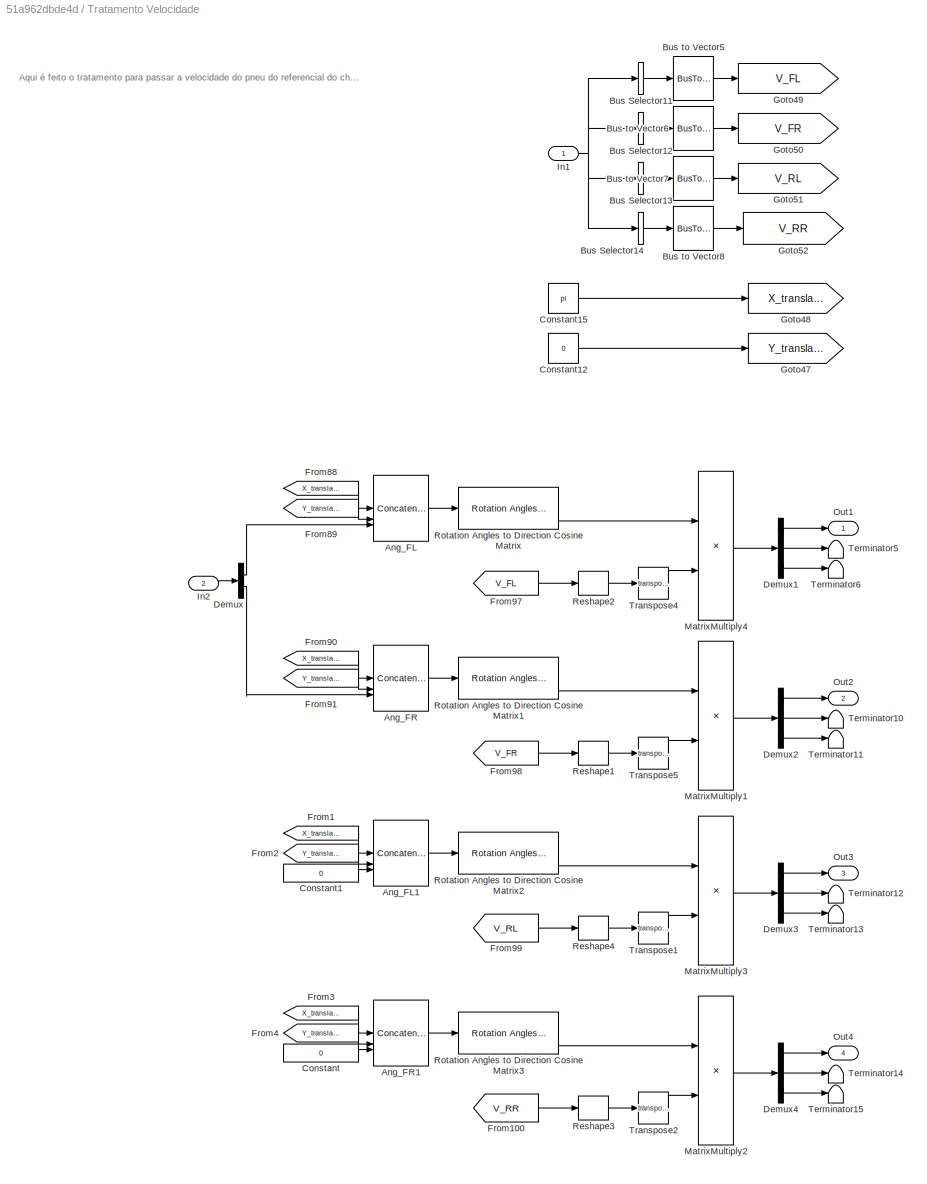
BLOCK [SubSystem] Tratamento Velocidade
BLOCK [Concatenate] Tratamento Velocidade/Ang_FL
  ConcatenateDimension = 2
  NumInputs = 3
BLOCK [Concatenate] Tratamento Velocidade/Ang_FL1
  ConcatenateDimension = 2
  NumInputs = 3
BLOCK [Concatenate] Tratamento Velocidade/Ang_FR
  ConcatenateDimension = 2
  NumInputs = 3
BLOCK [Concatenate] Tratamento Velocidade/Ang_FR1
  ConcatenateDimension = 2
  NumInputs = 3
BLOCK [BusSelector] Tratamento Velocidade/Bus Selector11
  OutputAsBus = on
  OutputSignals = BdyFrm.FrntAxl.Lft.Vel.xdot,BdyFrm.FrntAxl.Lft.Vel.ydot,BdyFrm.FrntAxl.Lft.Vel.zdot
BLOCK [BusSelector] Tratamento Velocidade/Bus Selector12
  OutputAsBus = on
  OutputSignals = BdyFrm.FrntAxl.Rght.Vel.xdot,BdyFrm.FrntAxl.Rght.Vel.ydot,BdyFrm.FrntAxl.Rght.Vel.zdot
BLOCK [BusSelector] Tratamento Velocidade/Bus Selector13
  OutputAsBus = on
  OutputSignals = BdyFrm.RearAxl.Lft.Vel.xdot,BdyFrm.RearAxl.Lft.Vel.ydot,BdyFrm.RearAxl.Lft.Vel.zdot
BLOCK [BusSelector] Tratamento Velocidade/Bus Selector14
  OutputAsBus = on
  OutputSignals = BdyFrm.RearAxl.Rght.Vel.xdot,BdyFrm.RearAxl.Rght.Vel.ydot,BdyFrm.RearAxl.Rght.Vel.zdot
BLOCK [BusToVector] Tratamento Velocidade/Bus to Vector5
BLOCK [BusToVector] Tratamento Velocidade/Bus to Vector6
BLOCK [BusToVector] Tratamento Velocidade/Bus to Vector7
BLOCK [BusToVector] Tratamento Velocidade/Bus to Vector8
BLOCK [Constant] Tratamento Velocidade/Constant
  Value = 0
BLOCK [Constant] Tratamento Velocidade/Constant1
  Value = 0
BLOCK [Constant] Tratamento Velocidade/Constant12
  Value = 0
BLOCK [Constant] Tratamento Velocidade/Constant15
  Value = pi
BLOCK [Demux] Tratamento Velocidade/Demux
  Outputs = 2
BLOCK [Demux] Tratamento Velocidade/Demux1
  Outputs = 3
BLOCK [Demux] Tratamento Velocidade/Demux2
  Outputs = 3
BLOCK [Demux] Tratamento Velocidade/Demux3
  Outputs = 3
BLOCK [Demux] Tratamento Velocidade/Demux4
  Outputs = 3
BLOCK [From] Tratamento Velocidade/From1
  GotoTag = X_translation
BLOCK [From] Tratamento Velocidade/From100
  GotoTag = V_RR
BLOCK [From] Tratamento Velocidade/From2
  GotoTag = Y_translation
BLOCK [From] Tratamento Velocidade/From3
  GotoTag = X_translation
BLOCK [From] Tratamento Velocidade/From4
  GotoTag = Y_translation
BLOCK [From] Tratamento Velocidade/From88
  GotoTag = X_translation
BLOCK [From] Tratamento Velocidade/From89
  GotoTag = Y_translation
BLOCK [From] Tratamento Velocidade/From90
  GotoTag = X_translation
BLOCK [From] Tratamento Velocidade/From91
  GotoTag = Y_translation
BLOCK [From] Tratamento Velocidade/From97
  GotoTag = V_FL
BLOCK [From] Tratamento Velocidade/From98
  GotoTag = V_FR
BLOCK [From] Tratamento Velocidade/From99
  GotoTag = V_RL
BLOCK [Goto] Tratamento Velocidade/Goto47
  GotoTag = Y_translation
BLOCK [Goto] Tratamento Velocidade/Goto48
  GotoTag = X_translation
BLOCK [Goto] Tratamento Velocidade/Goto49
  GotoTag = V_FL
BLOCK [Goto] Tratamento Velocidade/Goto50
  GotoTag = V_FR
BLOCK [Goto] Tratamento Velocidade/Goto51
  GotoTag = V_RL
BLOCK [Goto] Tratamento Velocidade/Goto52
  GotoTag = V_RR
BLOCK [Inport] Tratamento Velocidade/In1
BLOCK [Inport] Tratamento Velocidade/In2
  Port = 2
BLOCK [Product] Tratamento Velocidade/MatrixMultiply1
  Multiplication = Matrix(*)
BLOCK [Product] Tratamento Velocidade/MatrixMultiply2
  Multiplication = Matrix(*)
BLOCK [Product] Tratamento Velocidade/MatrixMultiply3
  Multiplication = Matrix(*)
BLOCK [Product] Tratamento Velocidade/MatrixMultiply4
  Multiplication = Matrix(*)
BLOCK [Outport] Tratamento Velocidade/Out1
BLOCK [Outport] Tratamento Velocidade/Out2
  Port = 2
BLOCK [Outport] Tratamento Velocidade/Out3
  Port = 3
BLOCK [Outport] Tratamento Velocidade/Out4
  Port = 4
BLOCK [Reshape] Tratamento Velocidade/Reshape1
  OutputDimensionality = Row vector (2-D)
BLOCK [Reshape] Tratamento Velocidade/Reshape2
  OutputDimensionality = Row vector (2-D)
BLOCK [Reshape] Tratamento Velocidade/Reshape3
  OutputDimensionality = Row vector (2-D)
BLOCK [Reshape] Tratamento Velocidade/Reshape4
  OutputDimensionality = Row vector (2-D)
BLOCK [Reference] Tratamento Velocidade/Rotation Angles to Direction Cosine Matrix  REF=sharedtransform/Rotation Angles to
Direction Cosine Matrix
  AttributesFormatString = Rotation Order: %<rotationOrder>
  SourceBlock = sharedtransform/Rotation Angles to\nDirection Cosine Matrix
  SourceType = Ang2DCM
BLOCK [Reference] Tratamento Velocidade/Rotation Angles to Direction Cosine Matrix1  REF=sharedtransform/Rotation Angles to
Direction Cosine Matrix
  AttributesFormatString = Rotation Order: %<rotationOrder>
  SourceBlock = sharedtransform/Rotation Angles to\nDirection Cosine Matrix
  SourceType = Ang2DCM
BLOCK [Reference] Tratamento Velocidade/Rotation Angles to Direction Cosine Matrix2  REF=sharedtransform/Rotation Angles to
Direction Cosine Matrix
  AttributesFormatString = Rotation Order: %<rotationOrder>
  SourceBlock = sharedtransform/Rotation Angles to\nDirection Cosine Matrix
  SourceType = Ang2DCM
BLOCK [Reference] Tratamento Velocidade/Rotation Angles to Direction Cosine Matrix3  REF=sharedtransform/Rotation Angles to
Direction Cosine Matrix
  AttributesFormatString = Rotation Order: %<rotationOrder>
  SourceBlock = sharedtransform/Rotation Angles to\nDirection Cosine Matrix
  SourceType = Ang2DCM
BLOCK [Terminator] Tratamento Velocidade/Terminator10
BLOCK [Terminator] Tratamento Velocidade/Terminator11
BLOCK [Terminator] Tratamento Velocidade/Terminator12
BLOCK [Terminator] Tratamento Velocidade/Terminator13
BLOCK [Terminator] Tratamento Velocidade/Terminator14
BLOCK [Terminator] Tratamento Velocidade/Terminator15
BLOCK [Terminator] Tratamento Velocidade/Terminator5
BLOCK [Terminator] Tratamento Velocidade/Terminator6
BLOCK [Math] Tratamento Velocidade/Transpose1
  Operator = transpose
BLOCK [Math] Tratamento Velocidade/Transpose2
  Operator = transpose
BLOCK [Math] Tratamento Velocidade/Transpose4
  Operator = transpose
BLOCK [Math] Tratamento Velocidade/Transpose5
  Operator = transpose
BLOCK [Concatenate] Vector Concatenate1
BLOCK [Concatenate] Vector Concatenate2
BLOCK [Concatenate] Vector Concatenate3
  NumInputs = 3
BLOCK [Concatenate] Vector Concatenate4
  NumInputs = 3
BLOCK [Concatenate] Vector Concatenate6
BLOCK [Reference] Vehicle Body 3DOF Dual Track  REF=autolibshared/Vehicle Body 3DOF Single Track
  LibrarySourceBlock = vehdynlibeom/Vehicle Body 3DOF Dual Track
  SourceBlock = autolibshared/Vehicle Body 3DOF Single Track
  SourceType = Vehicle Body 3DOF Lateral
BLOCK [Constant] WindY
  Value = 0
BLOCK [Reference] _  REF=autolibutils/Cont LPF
  SourceBlock = autolibutils/Cont LPF
BLOCK [Constant] const1
  Value = 0.18
BLOCK [ManualSwitch] on//off2
ANNOTATION (root): Chassi
ANNOTATION (root): Coeficiente de Atrito
ANNOTATION (root): Coeficiente de Atrito - Direito
ANNOTATION (root): Coeficiente de Atrito - Esquerdo
ANNOTATION (root): ControladorCA
ANNOTATION (root): Direção
ANNOTATION (root): Motores
ANNOTATION (root): Piloto
ANNOTATION (root): Pneus
ANNOTATION (root): Sensores
ANNOTATION (root): Slip Ratio
ANNOTATION (root): Trajetória
ANNOTATION (root): Visualizações Importantes
ANNOTATION Tratamento Velocidade: Aqui é feito o tratamento para passar a velocidade do pneu do referencial do chassi para o do pneu. Isso é necessário por que o bloco do pneu utiliza como referencial ele mesmo enquanto a informação que temos está no referencial do chassi.
LINE .:1 -> MATLAB Function:1
LINE 2D Visualization/Bus Creator8:1 -> 2D Visualization/Bus Selector8:1
LINE 2D Visualization/Bus Selector1:1 -> 2D Visualization/Bus to Vector2:1
LINE 2D Visualization/Bus Selector2:1 -> 2D Visualization/Vector Concatenate:1
LINE 2D Visualization/Bus Selector2:2 -> 2D Visualization/Vector Concatenate:2
LINE 2D Visualization/Bus Selector6:1 -> 2D Visualization/Bus to Vector:1
LINE 2D Visualization/Bus Selector7:1 -> 2D Visualization/Bus to Vector1:1
LINE 2D Visualization/Bus Selector8:1 -> 2D Visualization/Bus to Vector3:1
LINE 2D Visualization/Bus to Vector1:1 -> 2D Visualization/Vehicle XY Plotter1:3
LINE 2D Visualization/Bus to Vector2:1 -> 2D Visualization/Vehicle XY Plotter1:2
LINE 2D Visualization/Bus to Vector3:1 -> 2D Visualization/Vehicle XY Plotter1:5
LINE 2D Visualization/Bus to Vector:1 -> 2D Visualization/Vehicle XY Plotter1:1
LINE 2D Visualization/Constant1:1 -> 2D Visualization/Bus Creator8:2
LINE 2D Visualization/Constant2:1 -> 2D Visualization/Bus Creator8:3
LINE 2D Visualization/Constant:1 -> 2D Visualization/Bus Creator8:1
NET 2D Visualization/Ground3:1 -> 2D Visualization/Vector Concatenate2:1, 2D Visualization/Vector Concatenate2:2
NET 2D Visualization/Inport:1 -> 2D Visualization/Bus Selector1:1, 2D Visualization/Bus Selector2:1, 2D Visualization/Bus Selector6:1, 2D Visualization/Bus Selector7:1
LINE 2D Visualization/Vector Concatenate1:1 -> 2D Visualization/Vehicle XY Plotter1:4
LINE 2D Visualization/Vector Concatenate2:1 -> 2D Visualization/Vector Concatenate1:2
LINE 2D Visualization/Vector Concatenate:1 -> 2D Visualization/Vector Concatenate1:1
LINE 2D Visualization/Vehicle XY Plotter1/Data Type Conversion:1 -> 2D Visualization/Vehicle XY Plotter1/Rate Transition6:1
LINE 2D Visualization/Vehicle XY Plotter1/InertAng:1 -> 2D Visualization/Vehicle XY Plotter1/Rate Transition2:1
LINE 2D Visualization/Vehicle XY Plotter1/InertXYZ:1 -> 2D Visualization/Vehicle XY Plotter1/Rate Transition1:1
LINE 2D Visualization/Vehicle XY Plotter1/InertXdotYdotZdot:1 -> 2D Visualization/Vehicle XY Plotter1/Rate Transition4:1
LINE 2D Visualization/Vehicle XY Plotter1/Rate Transition1:1 -> 2D Visualization/Vehicle XY Plotter1/Vehicle XY Plotter:1
LINE 2D Visualization/Vehicle XY Plotter1/Rate Transition2:1 -> 2D Visualization/Vehicle XY Plotter1/Vehicle XY Plotter:2
LINE 2D Visualization/Vehicle XY Plotter1/Rate Transition3:1 -> 2D Visualization/Vehicle XY Plotter1/Vehicle XY Plotter:5
LINE 2D Visualization/Vehicle XY Plotter1/Rate Transition4:1 -> 2D Visualization/Vehicle XY Plotter1/Vehicle XY Plotter:3
LINE 2D Visualization/Vehicle XY Plotter1/Rate Transition5:1 -> 2D Visualization/Vehicle XY Plotter1/Vehicle XY Plotter:4
LINE 2D Visualization/Vehicle XY Plotter1/RefXYZ:1 -> 2D Visualization/Vehicle XY Plotter1/Rate Transition3:1
LINE 2D Visualization/Vehicle XY Plotter1/Reshape1:1 -> 2D Visualization/Vehicle XY Plotter1/Vector Concatenate:2
LINE 2D Visualization/Vehicle XY Plotter1/Reshape:1 -> 2D Visualization/Vehicle XY Plotter1/Vector Concatenate:1
LINE 2D Visualization/Vehicle XY Plotter1/Stats Ground:1 -> 2D Visualization/Vehicle XY Plotter1/Data Type Conversion:1
LINE 2D Visualization/Vehicle XY Plotter1/TireFx Ground:1 -> 2D Visualization/Vehicle XY Plotter1/Reshape:1
LINE 2D Visualization/Vehicle XY Plotter1/TireFy Ground:1 -> 2D Visualization/Vehicle XY Plotter1/Reshape1:1
LINE 2D Visualization/Vehicle XY Plotter1/Vector Concatenate:1 -> 2D Visualization/Vehicle XY Plotter1/Rate Transition7:1
LINE 2D Visualization/Vehicle XY Plotter1/WhlAng:1 -> 2D Visualization/Vehicle XY Plotter1/Rate Transition5:1
LINE Abs3:1 -> Switch3:3
LINE Band-Limited White Noise1:1 -> Sum of Elements4:2
LINE Band-Limited White Noise2:1 -> Sum of Elements5:2
LINE Band-Limited White Noise:1 -> Sum of Elements3:2
LINE Bus Creator:1 -> Goto:1
LINE Bus Selector1:1 -> Vector Concatenate3:1
LINE Bus Selector1:2 -> Vector Concatenate3:2
LINE Bus Selector1:3 -> Vector Concatenate3:3
LINE Bus Selector27:1 -> Three-axis Inertial Measurement Unit:2
LINE Bus Selector28:1 -> Three-axis Inertial Measurement Unit:1
LINE Bus Selector29:1 -> Three-axis Inertial Measurement Unit:3
LINE Bus Selector2:1 -> Goto39:1
LINE Bus Selector2:2 -> Goto40:1
LINE Bus Selector2:3 -> Goto41:1
LINE Bus Selector2:4 -> Goto42:1
LINE Bus Selector3:1 -> MATLAB Function4:1
LINE Clock:1 -> MATLAB Function4:2
LINE Constant10:1 -> Predictive Driver:1
LINE Constant11:1 -> FL_Wheel:1
LINE Constant13:1 -> Three-axis Inertial Measurement Unit:4
LINE Constant16:1 -> MATLAB Function2:3
LINE Constant17:1 -> MATLAB Function2:4
LINE Constant18:1 -> MATLAB Function3:3
LINE Constant19:1 -> MATLAB Function3:4
LINE Constant1:1 -> Mapped Motor (Right):1
LINE Constant20:1 -> MATLAB Function3:2
LINE Constant2:1 -> Three-axis Inertial Measurement Unit:5
LINE Constant3:1 -> Mapped Motor (Left):1
LINE Constant4:1 -> MATLAB Function2:2
NET Constant5:1 -> Vector Concatenate6:1, Vector Concatenate6:2
LINE Constant6:1 -> FR_Wheel:1
LINE Constant8:1 -> Manual Switch:1
LINE Constant9:1 -> Predictive Driver:3
LINE Constant:1 -> MATLAB Function7:1
LINE Electronic Throttle Actuator Dynamics1:1 -> Saturation1:1
NET Engine Response1:1 -> Goto16:1, Scope11:2
NET Engine Response2:1 -> Goto19:1, Scope11:1
LINE FL_Wheel:1 -> Terminator25:1
LINE FL_Wheel:2 -> Terminator16:1
LINE FL_Wheel:3 -> Goto27:1
LINE FR_Wheel:1 -> Terminator24:1
LINE FR_Wheel:2 -> Terminator18:1
LINE FR_Wheel:3 -> Goto21:1
LINE From101:1 -> Scope10:1
LINE From102:1 -> Scope10:2
LINE From103:1 -> Scope10:3
LINE From104:1 -> Scope10:4
LINE From109:1 -> Vector Concatenate1:1
LINE From10:1 -> Scope:1
LINE From110:1 -> Vector Concatenate1:2
LINE From11:1 -> Gain5:1
LINE From12:1 -> PID Controller4:1
LINE From13:1 -> Bus Selector3:1
LINE From14:1 -> MATLAB Function1:3
LINE From15:1 -> Sum:2
NET From16:1 -> Scope9:1, Transfer Fcn4:1
LINE From17:1 -> MATLAB Function1:2
LINE From18:1 -> MATLAB Function1:1
LINE From19:1 -> Scope3:2
LINE From1:1 -> Vehicle Body 3DOF Dual Track:5
LINE From20:1 -> Scope3:1
LINE From21:1 -> Scope4:1
LINE From22:1 -> Scope5:1
LINE From23:1 -> Sum1:2
LINE From26:1 -> Scope13:2
LINE From27:1 -> Scope13:1
LINE From2:1 -> Scope13:4
NET From34:1 -> MATLAB Function6:1, Scope23:1
LINE From35:1 -> 2D Visualization:1
LINE From37:1 -> Scope8:1
LINE From38:1 -> Min1:1
LINE From39:1 -> Vehicle Body 3DOF Dual Track:1
LINE From3:1 -> Scope13:3
LINE From40:1 -> MATLAB Function7:2
LINE From41:1 -> Min1:2
LINE From42:1 -> MATLAB Function7:3
LINE From4:1 -> MATLAB Function2:1
LINE From51:1 -> Scope16:1
LINE From52:1 -> Scope16:2
NET From53:1 -> Scope17:1, Transfer Fcn5:1
LINE From54:1 -> Predictive Driver:4
LINE From55:1 -> Scope18:1
LINE From56:1 -> Scope18:2
LINE From57:1 -> Integrator:1
LINE From59:1 -> Bus Selector1:1
LINE From5:1 -> Relação de Transmissão_:1
LINE From60:1 -> Sum:1
LINE From61:1 -> Sum1:1
LINE From62:1 -> Predictive Driver:2
LINE From68:1 -> Bus Selector2:1
LINE From6:1 -> Relação de Transmissão:1
LINE From73:1 -> RL_Wheel:1
LINE From74:1 -> RR_Wheel:1
LINE From75:1 -> Transfer Fcn3:1
LINE From76:1 -> Transfer Fcn2:1
LINE From77:1 -> Transfer Fcn1:1
LINE From78:1 -> Transfer Fcn:1
LINE From79:1 -> Scope21:4
LINE From7:1 -> MATLAB Function3:1
LINE From80:1 -> FL_Wheel:2
LINE From81:1 -> FR_Wheel:2
LINE From82:1 -> RL_Wheel:2
LINE From83:1 -> RR_Wheel:2
LINE From85:1 -> Scope21:2
LINE From86:1 -> Scope21:1
LINE From87:1 -> Tratamento Velocidade:2
LINE From88:1 -> Scope21:3
LINE From89:1 -> Scope8:2
LINE From8:1 -> Scope1:1
NET From91:1 -> Scope28:1, Transfer Fcn6:1
LINE From92:1 -> Vector Concatenate2:1
LINE From93:1 -> Vector Concatenate2:2
NET From94:1 -> Bus Selector27:1, Bus Selector28:1, Bus Selector29:1
LINE From96:1 -> Tratamento Velocidade:1
LINE From9:1 -> Gain7:1
LINE From:1 -> Vehicle Body 3DOF Dual Track:4
LINE Gain1:1 -> Engine Response2:1
NET Gain2:1 -> Goto32:1, Scope32:1
LINE Gain3:1 -> Goto7:1
NET Gain4:1 -> Goto13:1, Scope29:2
LINE Gain5:1 -> Sum of Elements6:2
NET Gain6:1 -> Goto11:1, Scope19:1
LINE Gain7:1 -> Sum of Elements6:1
LINE Gain:1 -> Engine Response1:1
LINE Ground2:1 -> on//off2:2
LINE Ground3:1 -> Switch3:1
LINE Integrator:1 -> MATLAB Function9:1
LINE MATLAB Function1:1 -> Goto3:1
LINE MATLAB Function1:2 -> Goto2:1
LINE MATLAB Function2:1 -> Goto6:1
LINE MATLAB Function3:1 -> Goto8:1
LINE MATLAB Function4:1 -> Display:1
LINE MATLAB Function4:2 -> Transfer Fcn7:1
LINE MATLAB Function6:1 -> Goto48:1
LINE MATLAB Function6:2 -> Goto49:1
LINE MATLAB Function7:1 -> Goto24:1
LINE MATLAB Function9:1 -> Vector Concatenate4:1
LINE MATLAB Function9:2 -> Vector Concatenate4:2
LINE MATLAB Function9:3 -> Vector Concatenate4:3
LINE MATLAB Function:1 -> Goto1:1
LINE Manual Switch:1 -> Goto28:1
LINE Mapped Motor (Left):1 -> Terminator:1
LINE Mapped Motor (Left):2 -> Terminator3:1
LINE Mapped Motor (Left):3 -> Gain1:1
LINE Mapped Motor (Right):1 -> Terminator1:1
LINE Mapped Motor (Right):2 -> Terminator2:1
LINE Mapped Motor (Right):3 -> Gain:1
LINE Min1:1 -> Manual Switch:2
LINE PID Controller4:1 -> on//off2:1
LINE Predictive Driver:1 -> Terminator4:1
NET Predictive Driver:2 -> Gain4:1, Scope29:1
LINE Predictive Driver:3 -> Gain2:1
LINE Predictive Driver:4 -> Terminator7:1
LINE RL_Wheel:1 -> Terminator23:1
NET RL_Wheel:2 -> Goto29:1, Scope2:1
LINE RL_Wheel:3 -> Goto4:1
LINE RR_Wheel:1 -> Terminator6:1
NET RR_Wheel:2 -> Goto53:1, Scope6:1
LINE RR_Wheel:3 -> Goto5:1
LINE Relação de Transmissão:1 -> Signal Specification4:1
LINE Relação de Transmissão_:1 -> Signal Specification1:1
NET Saturation1:1 -> Mapped Motor (Right):3, Scope15:1
NET Saturation:1 -> Mapped Motor (Left):3, Scope14:1
LINE Signal Specification1:1 -> Mapped Motor (Left):2
LINE Signal Specification4:1 -> Mapped Motor (Right):2
LINE Sum of Elements1:1 -> Gain3:1
NET Sum of Elements3:1 -> Goto9:1, Scope9:2
NET Sum of Elements4:1 -> Scope17:2, Sum of Elements1:1
NET Sum of Elements5:1 -> Scope28:2, Sum of Elements1:2
LINE Sum of Elements6:1 -> Gain6:1
LINE Sum1:1 -> _:1
LINE Sum:1 -> Electronic Throttle Actuator Dynamics1:1
LINE Switch3:1 -> Goto30:1
LINE Tamanho da Pista:1 -> MATLAB Function9:2
LINE Three-axis Inertial Measurement Unit:1 -> Scope7:1
LINE Three-axis Inertial Measurement Unit:2 -> Scope25:1
LINE Transfer Fcn1:1 -> RL_Wheel:3
LINE Transfer Fcn2:1 -> FR_Wheel:3
LINE Transfer Fcn3:1 -> FL_Wheel:3
LINE Transfer Fcn4:1 -> Sum of Elements3:1
LINE Transfer Fcn5:1 -> Sum of Elements4:1
LINE Transfer Fcn6:1 -> Sum of Elements5:1
LINE Transfer Fcn7:1 -> Stop Simulation:1
LINE Transfer Fcn:1 -> RR_Wheel:3
LINE Tratamento Velocidade/Ang_FL1:1 -> Tratamento Velocidade/Rotation Angles to Direction Cosine Matrix2:1
LINE Tratamento Velocidade/Ang_FL:1 -> Tratamento Velocidade/Rotation Angles to Direction Cosine Matrix:1
LINE Tratamento Velocidade/Ang_FR1:1 -> Tratamento Velocidade/Rotation Angles to Direction Cosine Matrix3:1
LINE Tratamento Velocidade/Ang_FR:1 -> Tratamento Velocidade/Rotation Angles to Direction Cosine Matrix1:1
LINE Tratamento Velocidade/Bus Selector11:1 -> Tratamento Velocidade/Bus to Vector5:1
LINE Tratamento Velocidade/Bus Selector12:1 -> Tratamento Velocidade/Bus to Vector6:1
LINE Tratamento Velocidade/Bus Selector13:1 -> Tratamento Velocidade/Bus to Vector7:1
LINE Tratamento Velocidade/Bus Selector14:1 -> Tratamento Velocidade/Bus to Vector8:1
LINE Tratamento Velocidade/Bus to Vector5:1 -> Tratamento Velocidade/Goto49:1
LINE Tratamento Velocidade/Bus to Vector6:1 -> Tratamento Velocidade/Goto50:1
LINE Tratamento Velocidade/Bus to Vector7:1 -> Tratamento Velocidade/Goto51:1
LINE Tratamento Velocidade/Bus to Vector8:1 -> Tratamento Velocidade/Goto52:1
LINE Tratamento Velocidade/Constant12:1 -> Tratamento Velocidade/Goto47:1
LINE Tratamento Velocidade/Constant15:1 -> Tratamento Velocidade/Goto48:1
LINE Tratamento Velocidade/Constant1:1 -> Tratamento Velocidade/Ang_FL1:3
LINE Tratamento Velocidade/Constant:1 -> Tratamento Velocidade/Ang_FR1:3
LINE Tratamento Velocidade/Demux1:1 -> Tratamento Velocidade/Out1:1
LINE Tratamento Velocidade/Demux1:2 -> Tratamento Velocidade/Terminator5:1
LINE Tratamento Velocidade/Demux1:3 -> Tratamento Velocidade/Terminator6:1
LINE Tratamento Velocidade/Demux2:1 -> Tratamento Velocidade/Out2:1
LINE Tratamento Velocidade/Demux2:2 -> Tratamento Velocidade/Terminator10:1
LINE Tratamento Velocidade/Demux2:3 -> Tratamento Velocidade/Terminator11:1
LINE Tratamento Velocidade/Demux3:1 -> Tratamento Velocidade/Out3:1
LINE Tratamento Velocidade/Demux3:2 -> Tratamento Velocidade/Terminator12:1
LINE Tratamento Velocidade/Demux3:3 -> Tratamento Velocidade/Terminator13:1
LINE Tratamento Velocidade/Demux4:1 -> Tratamento Velocidade/Out4:1
LINE Tratamento Velocidade/Demux4:2 -> Tratamento Velocidade/Terminator14:1
LINE Tratamento Velocidade/Demux4:3 -> Tratamento Velocidade/Terminator15:1
LINE Tratamento Velocidade/Demux:1 -> Tratamento Velocidade/Ang_FL:3
LINE Tratamento Velocidade/Demux:2 -> Tratamento Velocidade/Ang_FR:3
LINE Tratamento Velocidade/From100:1 -> Tratamento Velocidade/Reshape3:1
LINE Tratamento Velocidade/From1:1 -> Tratamento Velocidade/Ang_FL1:1
LINE Tratamento Velocidade/From2:1 -> Tratamento Velocidade/Ang_FL1:2
LINE Tratamento Velocidade/From3:1 -> Tratamento Velocidade/Ang_FR1:1
LINE Tratamento Velocidade/From4:1 -> Tratamento Velocidade/Ang_FR1:2
LINE Tratamento Velocidade/From88:1 -> Tratamento Velocidade/Ang_FL:1
LINE Tratamento Velocidade/From89:1 -> Tratamento Velocidade/Ang_FL:2
LINE Tratamento Velocidade/From90:1 -> Tratamento Velocidade/Ang_FR:1
LINE Tratamento Velocidade/From91:1 -> Tratamento Velocidade/Ang_FR:2
LINE Tratamento Velocidade/From97:1 -> Tratamento Velocidade/Reshape2:1
LINE Tratamento Velocidade/From98:1 -> Tratamento Velocidade/Reshape1:1
LINE Tratamento Velocidade/From99:1 -> Tratamento Velocidade/Reshape4:1
NET Tratamento Velocidade/In1:1 -> Tratamento Velocidade/Bus Selector11:1, Tratamento Velocidade/Bus Selector12:1, Tratamento Velocidade/Bus Selector13:1, Tratamento Velocidade/Bus Selector14:1
LINE Tratamento Velocidade/In2:1 -> Tratamento Velocidade/Demux:1
LINE Tratamento Velocidade/MatrixMultiply1:1 -> Tratamento Velocidade/Demux2:1
LINE Tratamento Velocidade/MatrixMultiply2:1 -> Tratamento Velocidade/Demux4:1
LINE Tratamento Velocidade/MatrixMultiply3:1 -> Tratamento Velocidade/Demux3:1
LINE Tratamento Velocidade/MatrixMultiply4:1 -> Tratamento Velocidade/Demux1:1
LINE Tratamento Velocidade/Reshape1:1 -> Tratamento Velocidade/Transpose5:1
LINE Tratamento Velocidade/Reshape2:1 -> Tratamento Velocidade/Transpose4:1
LINE Tratamento Velocidade/Reshape3:1 -> Tratamento Velocidade/Transpose2:1
LINE Tratamento Velocidade/Reshape4:1 -> Tratamento Velocidade/Transpose1:1
LINE Tratamento Velocidade/Rotation Angles to Direction Cosine Matrix1:1 -> Tratamento Velocidade/MatrixMultiply1:1
LINE Tratamento Velocidade/Rotation Angles to Direction Cosine Matrix2:1 -> Tratamento Velocidade/MatrixMultiply3:1
LINE Tratamento Velocidade/Rotation Angles to Direction Cosine Matrix3:1 -> Tratamento Velocidade/MatrixMultiply2:1
LINE Tratamento Velocidade/Rotation Angles to Direction Cosine Matrix:1 -> Tratamento Velocidade/MatrixMultiply4:1
LINE Tratamento Velocidade/Transpose1:1 -> Tratamento Velocidade/MatrixMultiply3:2
LINE Tratamento Velocidade/Transpose2:1 -> Tratamento Velocidade/MatrixMultiply2:2
LINE Tratamento Velocidade/Transpose4:1 -> Tratamento Velocidade/MatrixMultiply4:2
LINE Tratamento Velocidade/Transpose5:1 -> Tratamento Velocidade/MatrixMultiply1:2
LINE Tratamento Velocidade:1 -> Goto43:1
LINE Tratamento Velocidade:2 -> Goto44:1
LINE Tratamento Velocidade:3 -> Goto45:1
LINE Tratamento Velocidade:4 -> Goto46:1
LINE Vector Concatenate1:1 -> Vehicle Body 3DOF Dual Track:3
LINE Vector Concatenate2:1 -> Goto23:1
LINE Vector Concatenate3:1 -> Predictive Driver:5
LINE Vector Concatenate4:1 -> Goto33:1
LINE Vector Concatenate6:1 -> Vehicle Body 3DOF Dual Track:2
LINE Vehicle Body 3DOF Dual Track:1 -> Goto20:1
LINE Vehicle Body 3DOF Dual Track:2 -> Goto22:1
LINE Vehicle Body 3DOF Dual Track:3 -> Terminator20:1
LINE Vehicle Body 3DOF Dual Track:4 -> Terminator22:1
LINE Vehicle Body 3DOF Dual Track:5 -> Terminator5:1
LINE Vehicle Body 3DOF Dual Track:6 -> Terminator8:1
LINE Vehicle Body 3DOF Dual Track:7 -> Terminator9:1
NET WindY:1 -> Bus Creator:1, Bus Creator:2, Bus Creator:3
LINE _:1 -> Saturation:1
LINE const1:1 -> Scope8:3
NET on//off2:1 -> Abs3:1, Switch3:2
note: NET lines group one-source signal fan-out (src -> all destinations, sorted); 1:1 wires keep LINE
CHART MATLAB Function1 states=1 transitions=1
  STATE_LABEL 'eML_blk_kernel()'
  STATE_LABEL 'SCRIPT:\nfunction [SR_L, SR_R] = fcn(Vcg, RL_speed, RR_speed)\n%#codegen\n\n% --- Configuração de Segurança ---\n% \'epsilon\' é um valor pequeno que impede a divisão por zero.\n% 0.1 m/s é um bom valor: abaixo disso, consideramos "parado".\nepsilon = 0.1; \n\n% --- Slip Esquerdo (SR_L) ---\n% A fórmula é: (V_roda - V_carro) / V_roda\n% Truque: O denominador será o MAIOR valor entre \'a velocidade real\' e \'0.1\'...<+288ch>'
CHART MATLAB Function states=1 transitions=1
  STATE_LABEL 'eML_blk_kernel()'
  STATE_LABEL 'SCRIPT:\nfunction vec= fcn(u)\n\nvec = [u(1), u(2); u(3), u(4)];\n'
CHART MATLAB Function2 states=1 transitions=1
  STATE_LABEL 'eML_blk_kernel()'
  STATE_LABEL 'SCRIPT:\nfunction Atrito_L = fcn(SR_L, C1, C2, C3)\n\nAtrito_L = (C1*(1-(exp(SR_L*C2*(-1)))))-(C3*SR_L);\n\n\n\n\n\n'
CHART MATLAB Function3 states=1 transitions=1
  STATE_LABEL 'eML_blk_kernel()'
  STATE_LABEL 'SCRIPT:\nfunction Atrito_R = fcn(SR_R, C1, C2, C3)\n\nAtrito_R = (C1*(1-(exp(SR_R*C2*(-1)))))-(C3*SR_R);\n\n\n\n'
CHART MATLAB Function4 states=1 transitions=1
  STATE_LABEL 'eML_blk_kernel()'
  STATE_LABEL 'SCRIPT:\nfunction [tempo_final, signal]= fcn(distancia, tempo_atual)\n\nsignal = 0;\npersistent tempo_registrado cruzou_linha\n\nif isempty(tempo_registrado)\n    tempo_registrado = 0;\n    cruzou_linha = false;\nend\n\nif distancia >= 75 && cruzou_linha == false\n    tempo_registrado = tempo_atual; \n    cruzou_linha = true;           \nend\n\nif cruzou_linha\n\n    tempo_final = tempo_registrado; \n    signal = 1;...<+36ch>'
CHART MATLAB Function6 states=1 transitions=1
  STATE_LABEL 'eML_blk_kernel()'
  STATE_LABEL 'SCRIPT:\nfunction [left_wheel_angle, right_wheel_angle] = fcn(steering_angle)\n\nif(steering_angle<=0)\n    left_wheel_angle = 0.30732918494924799*steering_angle;\n    right_wheel_angle = 0.268948751217872*steering_angle;\n\nelse (steering_angle>0)\n    left_wheel_angle = 0.268948678266664*steering_angle;\n    right_wheel_angle = 0.30732915888671*steering_angle;\nend\nend'
CHART MATLAB Function7 states=1 transitions=1
  STATE_LABEL 'eML_blk_kernel()'
  STATE_LABEL 'SCRIPT:\nfunction CA_error= fcn(setpoint,SR_L, SR_R)\n\n    CA_error_left = setpoint-SR_L;\n\n    CA_error_right = setpoint-SR_R;\n\n    CA_error = (CA_error_left + CA_error_right)/2;\n\nend\n\n\n'
CHART MATLAB Function9 states=1 transitions=1
  STATE_LABEL 'eML_blk_kernel()'
  STATE_LABEL 'SCRIPT:\nfunction [x_ref, y_ref, psi_ref] = fcn(s, T)\n\nif s <= T\n    x_ref = T;\n\nelse\n    x_ref = T + s;\n\nend\n\ny_ref = 0;\npsi_ref = 0;\n\nend'
CHART  states=0 transitions=0
CHART  states=0 transitions=0
CHART  states=0 transitions=0
CHART  states=0 transitions=0
CHART  states=0 transitions=0
CHART  states=0 transitions=0
CHART  states=0 transitions=0
CHART  states=0 transitions=0
